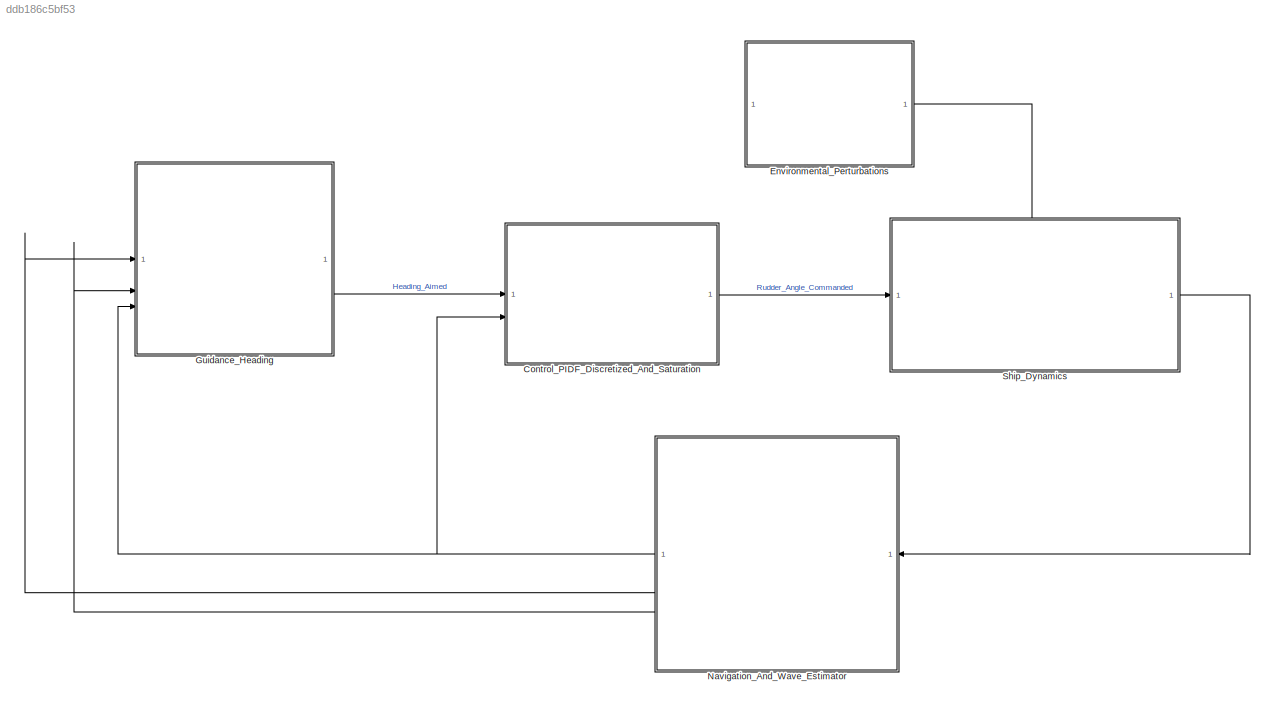
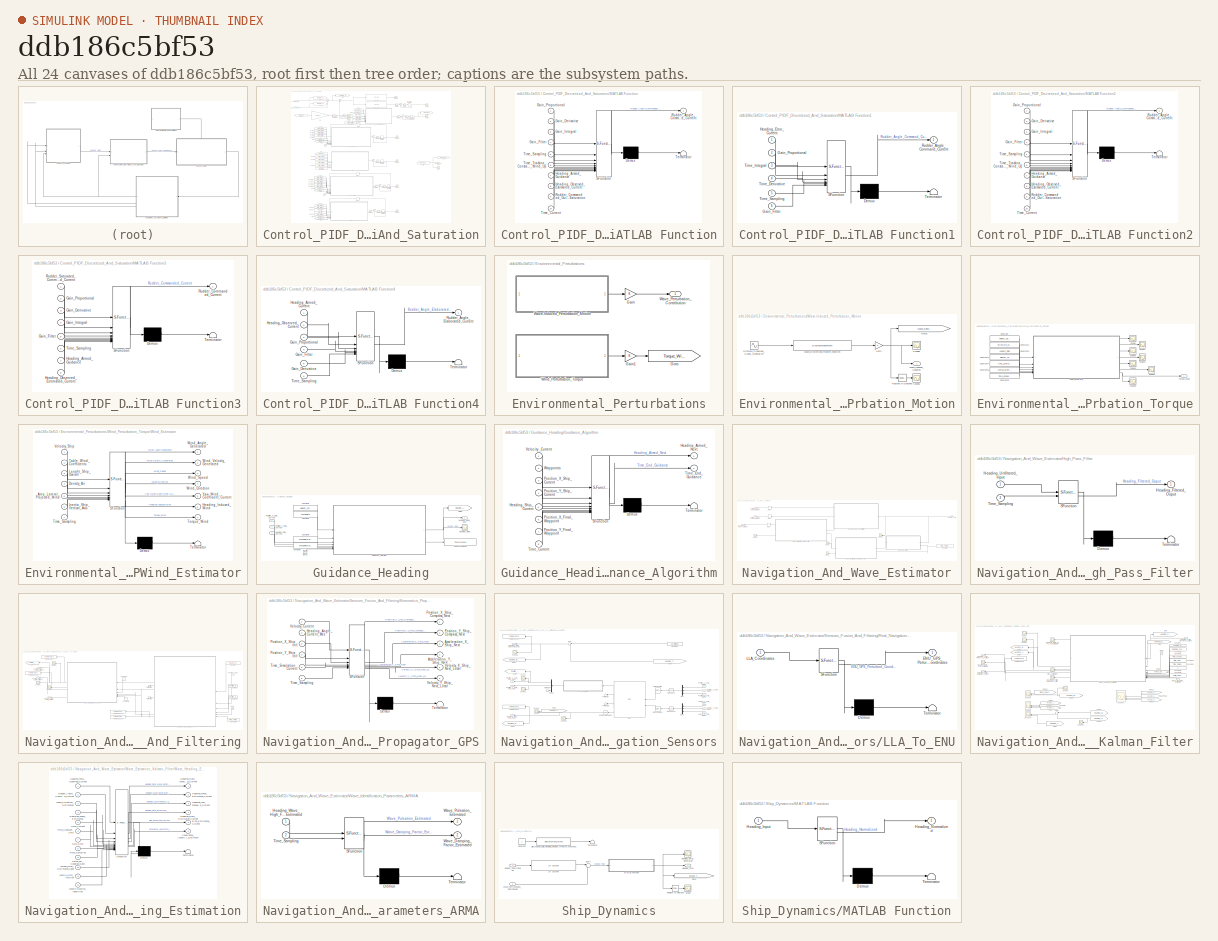
[diagram: thumbnail index - all 24 canvases of the model, root first then tree order]
MODEL slx_ddb186c5bf53
KIND model
CONFIG AbsTol = auto
CONFIG EnableMultiTasking = off
CONFIG FixedStep = auto
CONFIG MaxStep = auto
CONFIG MinStep = auto
CONFIG RelTol = 1e-3
CONFIG SampleTimeConstraint = Unconstrained
CONFIG SolverName = VariableStepAuto
CONFIG StartTime = 0.0
CONFIG StopTime = 1000
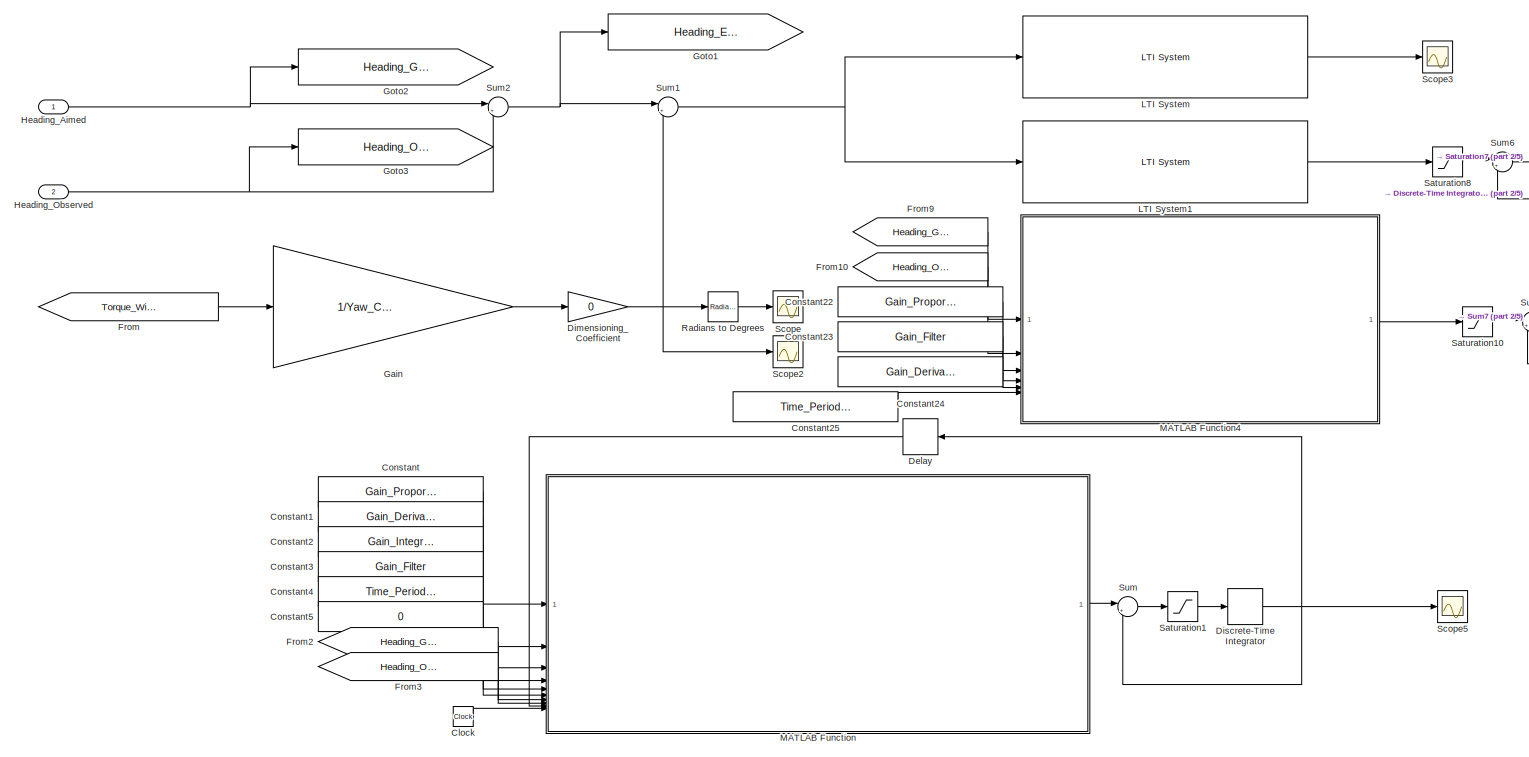
[diagram: Control_PIDF_Discretized_And_Saturation - part 1/5, top center region]
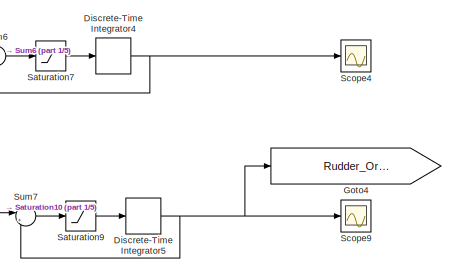
[diagram: Control_PIDF_Discretized_And_Saturation - part 2/5, top right region]
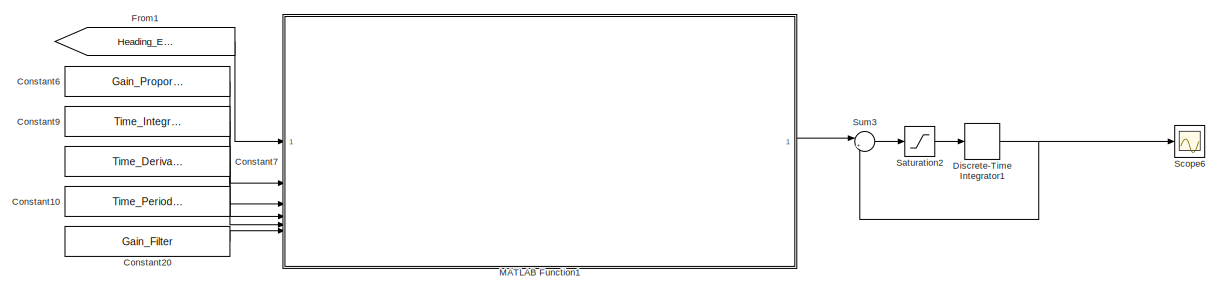
[diagram: Control_PIDF_Discretized_And_Saturation - part 3/5, central region]
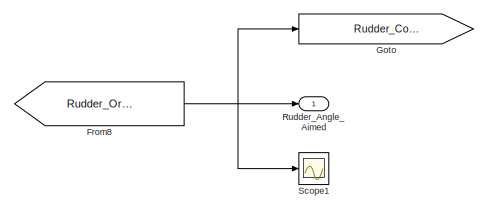
[diagram: Control_PIDF_Discretized_And_Saturation - part 4/5, middle right region]
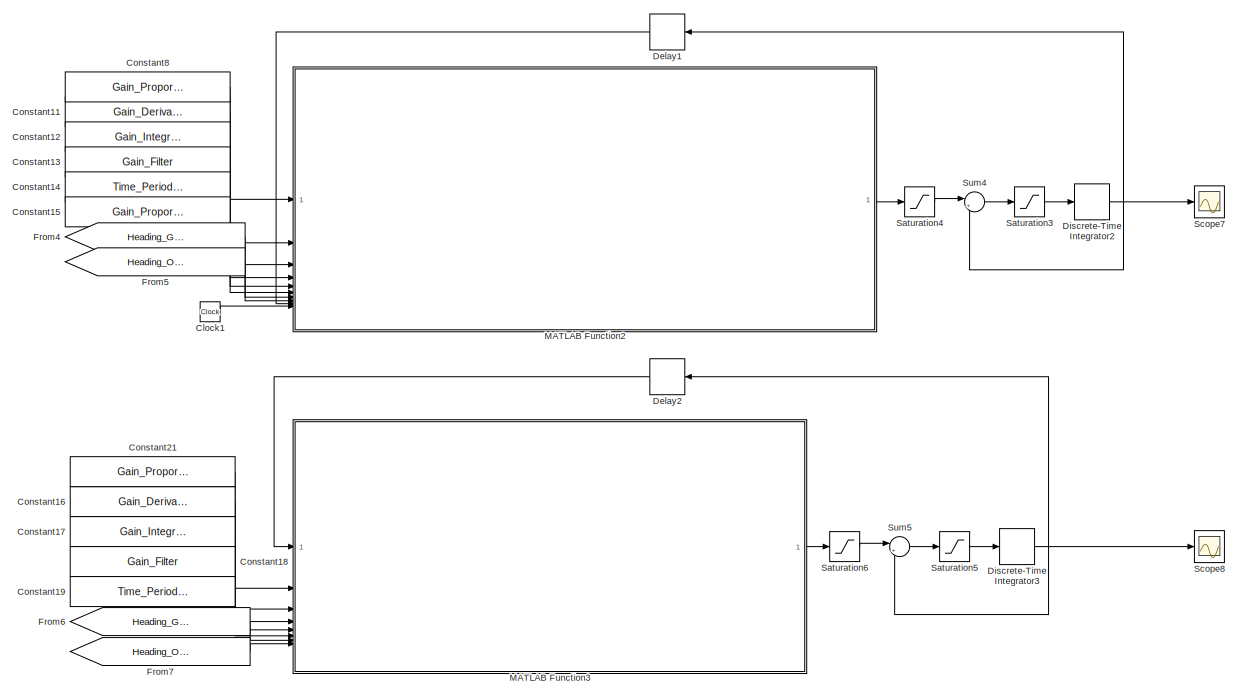
[diagram: Control_PIDF_Discretized_And_Saturation - part 5/5, bottom center region]
BLOCK [SubSystem] Control_PIDF_Discretized_And_Saturation
BLOCK [Clock] Control_PIDF_Discretized_And_Saturation/Clock
BLOCK [Clock] Control_PIDF_Discretized_And_Saturation/Clock1
BLOCK [Constant] Control_PIDF_Discretized_And_Saturation/Constant
  Value = Gain_Proportional
BLOCK [Constant] Control_PIDF_Discretized_And_Saturation/Constant1
  Value = Gain_Derivative
BLOCK [Constant] Control_PIDF_Discretized_And_Saturation/Constant10
  Value = Time_Period_Sampling
BLOCK [Constant] Control_PIDF_Discretized_And_Saturation/Constant11
  Value = Gain_Derivative
BLOCK [Constant] Control_PIDF_Discretized_And_Saturation/Constant12
  Value = Gain_Integral
BLOCK [Constant] Control_PIDF_Discretized_And_Saturation/Constant13
  Value = Gain_Filter
BLOCK [Constant] Control_PIDF_Discretized_And_Saturation/Constant14
  Value = Time_Period_Sampling
BLOCK [Constant] Control_PIDF_Discretized_And_Saturation/Constant15
  Value = Gain_Proportional/Gain_Integral/4
BLOCK [Constant] Control_PIDF_Discretized_And_Saturation/Constant16
  Value = Gain_Derivative
BLOCK [Constant] Control_PIDF_Discretized_And_Saturation/Constant17
  Value = Gain_Integral
BLOCK [Constant] Control_PIDF_Discretized_And_Saturation/Constant18
  Value = Gain_Filter
BLOCK [Constant] Control_PIDF_Discretized_And_Saturation/Constant19
  Value = Time_Period_Sampling
BLOCK [Constant] Control_PIDF_Discretized_And_Saturation/Constant2
  Value = Gain_Integral
BLOCK [Constant] Control_PIDF_Discretized_And_Saturation/Constant20
  Value = Gain_Filter
BLOCK [Constant] Control_PIDF_Discretized_And_Saturation/Constant21
  Value = Gain_Proportional
BLOCK [Constant] Control_PIDF_Discretized_And_Saturation/Constant22
  Value = Gain_Proportional
BLOCK [Constant] Control_PIDF_Discretized_And_Saturation/Constant23
  Value = Gain_Filter
BLOCK [Constant] Control_PIDF_Discretized_And_Saturation/Constant24
  Value = Gain_Derivative
BLOCK [Constant] Control_PIDF_Discretized_And_Saturation/Constant25
  Value = Time_Period_Sampling
BLOCK [Constant] Control_PIDF_Discretized_And_Saturation/Constant3
  Value = Gain_Filter
BLOCK [Constant] Control_PIDF_Discretized_And_Saturation/Constant4
  Value = Time_Period_Sampling
BLOCK [Constant] Control_PIDF_Discretized_And_Saturation/Constant5
  Value = 0
BLOCK [Constant] Control_PIDF_Discretized_And_Saturation/Constant6
  Value = Gain_Proportional
BLOCK [Constant] Control_PIDF_Discretized_And_Saturation/Constant7
  Value = Time_Derivative
BLOCK [Constant] Control_PIDF_Discretized_And_Saturation/Constant8
  Value = Gain_Proportional
BLOCK [Constant] Control_PIDF_Discretized_And_Saturation/Constant9
  Value = Time_Integral
BLOCK [Delay] Control_PIDF_Discretized_And_Saturation/Delay
  DelayLength = 1
  InputPortMap = u0
  InputProcessing = Columns as channels (frame based)
  SampleTime = Time_Period_Sampling
BLOCK [Delay] Control_PIDF_Discretized_And_Saturation/Delay1
  DelayLength = 1
  InputPortMap = u0
  InputProcessing = Columns as channels (frame based)
  SampleTime = Time_Period_Sampling
BLOCK [Delay] Control_PIDF_Discretized_And_Saturation/Delay2
  DelayLength = 1
  InputPortMap = u0
  InputProcessing = Columns as channels (frame based)
  SampleTime = Time_Period_Sampling
BLOCK [Gain] Control_PIDF_Discretized_And_Saturation/Dimensioning_Coefficient
  Gain = 0
BLOCK [DiscreteIntegrator] Control_PIDF_Discretized_And_Saturation/Discrete-Time Integrator
  ICPrevOutput = DiscIntNeverNeededParam
  ICPrevScaledInput = DiscIntNeverNeededParam
  InitialConditionSetting = Auto
  SampleTime = Time_Period_Sampling
BLOCK [DiscreteIntegrator] Control_PIDF_Discretized_And_Saturation/Discrete-Time Integrator1
  ICPrevOutput = DiscIntNeverNeededParam
  ICPrevScaledInput = DiscIntNeverNeededParam
  InitialConditionSetting = Auto
  SampleTime = Time_Period_Sampling
BLOCK [DiscreteIntegrator] Control_PIDF_Discretized_And_Saturation/Discrete-Time Integrator2
  ICPrevOutput = DiscIntNeverNeededParam
  ICPrevScaledInput = DiscIntNeverNeededParam
  InitialConditionSetting = Auto
  SampleTime = Time_Period_Sampling
BLOCK [DiscreteIntegrator] Control_PIDF_Discretized_And_Saturation/Discrete-Time Integrator3
  ICPrevOutput = DiscIntNeverNeededParam
  ICPrevScaledInput = DiscIntNeverNeededParam
  InitialConditionSetting = Auto
  SampleTime = Time_Period_Sampling
BLOCK [DiscreteIntegrator] Control_PIDF_Discretized_And_Saturation/Discrete-Time Integrator4
  ICPrevOutput = DiscIntNeverNeededParam
  ICPrevScaledInput = DiscIntNeverNeededParam
  InitialConditionSetting = Auto
  SampleTime = Time_Period_Sampling
BLOCK [DiscreteIntegrator] Control_PIDF_Discretized_And_Saturation/Discrete-Time Integrator5
  ICPrevOutput = DiscIntNeverNeededParam
  ICPrevScaledInput = DiscIntNeverNeededParam
  InitialConditionSetting = Auto
  SampleTime = Time_Period_Sampling
BLOCK [From] Control_PIDF_Discretized_And_Saturation/From
  GotoTag = Torque_Wind_Generated
  TagVisibility = global
BLOCK [From] Control_PIDF_Discretized_And_Saturation/From1
  GotoTag = Heading_Error
  TagVisibility = global
BLOCK [From] Control_PIDF_Discretized_And_Saturation/From10
  GotoTag = Heading_Observed
  TagVisibility = global
BLOCK [From] Control_PIDF_Discretized_And_Saturation/From2
  GotoTag = Heading_Guidance
  TagVisibility = global
BLOCK [From] Control_PIDF_Discretized_And_Saturation/From3
  GotoTag = Heading_Observed
  TagVisibility = global
BLOCK [From] Control_PIDF_Discretized_And_Saturation/From4
  GotoTag = Heading_Guidance
  TagVisibility = global
BLOCK [From] Control_PIDF_Discretized_And_Saturation/From5
  GotoTag = Heading_Observed
  TagVisibility = global
BLOCK [From] Control_PIDF_Discretized_And_Saturation/From6
  GotoTag = Heading_Guidance
  TagVisibility = global
BLOCK [From] Control_PIDF_Discretized_And_Saturation/From7
  GotoTag = Heading_Observed
  TagVisibility = global
BLOCK [From] Control_PIDF_Discretized_And_Saturation/From8
  GotoTag = Rudder_Order
  TagVisibility = global
BLOCK [From] Control_PIDF_Discretized_And_Saturation/From9
  GotoTag = Heading_Guidance
  TagVisibility = global
BLOCK [Gain] Control_PIDF_Discretized_And_Saturation/Gain
  Gain = 1/Yaw_Control_Hydrodynamics_Derivative
BLOCK [Goto] Control_PIDF_Discretized_And_Saturation/Goto
  GotoTag = Rudder_Commanded
  TagVisibility = global
BLOCK [Goto] Control_PIDF_Discretized_And_Saturation/Goto1
  GotoTag = Heading_Error
  TagVisibility = global
BLOCK [Goto] Control_PIDF_Discretized_And_Saturation/Goto2
  GotoTag = Heading_Guidance
  TagVisibility = global
BLOCK [Goto] Control_PIDF_Discretized_And_Saturation/Goto3
  GotoTag = Heading_Observed
  TagVisibility = global
BLOCK [Goto] Control_PIDF_Discretized_And_Saturation/Goto4
  GotoTag = Rudder_Order
  TagVisibility = global
BLOCK [Inport] Control_PIDF_Discretized_And_Saturation/Heading_Aimed
BLOCK [Inport] Control_PIDF_Discretized_And_Saturation/Heading_Observed
  Port = 2
BLOCK [Reference] Control_PIDF_Discretized_And_Saturation/LTI System  REF=cstblocks/LTI System
  SourceBlock = cstblocks/LTI System
  SourceType = LTI Block
BLOCK [Reference] Control_PIDF_Discretized_And_Saturation/LTI System1  REF=cstblocks/LTI System
  SourceBlock = cstblocks/LTI System
  SourceType = LTI Block
BLOCK [SubSystem] Control_PIDF_Discretized_And_Saturation/MATLAB Function
  ErrorFcn = Stateflow.Translate.translate
  PermitHierarchicalResolution = ExplicitOnly
  SFBlockType = MATLAB Function
  SystemSampleTime = Time_Period_Sampling
  TreatAsAtomicUnit = on
BLOCK [Demux] Control_PIDF_Discretized_And_Saturation/MATLAB Function/ Demux 
  Outputs = 1
BLOCK [S-Function] Control_PIDF_Discretized_And_Saturation/MATLAB Function/ SFunction 
  EnableBusSupport = on
  FunctionName = sf_sfun
  PortCounts = [10 2]
  SFcnIsStateOwnerBlock = off
  SFunctionDeploymentMode = off
  Tag = Stateflow S-Function 2
BLOCK [Terminator] Control_PIDF_Discretized_And_Saturation/MATLAB Function/ Terminator 
BLOCK [Inport] Control_PIDF_Discretized_And_Saturation/MATLAB Function/Gain_Derivative
  Port = 2
BLOCK [Inport] Control_PIDF_Discretized_And_Saturation/MATLAB Function/Gain_Filter
  Port = 4
BLOCK [Inport] Control_PIDF_Discretized_And_Saturation/MATLAB Function/Gain_Integral
  Port = 3
BLOCK [Inport] Control_PIDF_Discretized_And_Saturation/MATLAB Function/Gain_Proportional
BLOCK [Inport] Control_PIDF_Discretized_And_Saturation/MATLAB Function/Heading_Aimed_Guidance
  Port = 7
BLOCK [Inport] Control_PIDF_Discretized_And_Saturation/MATLAB Function/Heading_Observed_Estimated_Current
  Port = 8
BLOCK [Outport] Control_PIDF_Discretized_And_Saturation/MATLAB Function/Rudder_Angle_Commanded_Current
BLOCK [Inport] Control_PIDF_Discretized_And_Saturation/MATLAB Function/Rudder_Commanded_Output_Saturation
  Port = 9
BLOCK [Inport] Control_PIDF_Discretized_And_Saturation/MATLAB Function/Time_Current
  Port = 10
BLOCK [Inport] Control_PIDF_Discretized_And_Saturation/MATLAB Function/Time_Sampling
  Port = 5
BLOCK [Inport] Control_PIDF_Discretized_And_Saturation/MATLAB Function/Time_Tracking_Constant_Anti_Wind_Up
  Port = 6
BLOCK [SubSystem] Control_PIDF_Discretized_And_Saturation/MATLAB Function1
  ErrorFcn = Stateflow.Translate.translate
  PermitHierarchicalResolution = ExplicitOnly
  SFBlockType = MATLAB Function
  SystemSampleTime = Time_Period_Sampling
  TreatAsAtomicUnit = on
BLOCK [Demux] Control_PIDF_Discretized_And_Saturation/MATLAB Function1/ Demux 
  Outputs = 1
BLOCK [S-Function] Control_PIDF_Discretized_And_Saturation/MATLAB Function1/ SFunction 
  EnableBusSupport = on
  FunctionName = sf_sfun
  PortCounts = [6 2]
  SFcnIsStateOwnerBlock = off
  SFunctionDeploymentMode = off
  Tag = Stateflow S-Function 5
BLOCK [Terminator] Control_PIDF_Discretized_And_Saturation/MATLAB Function1/ Terminator 
BLOCK [Inport] Control_PIDF_Discretized_And_Saturation/MATLAB Function1/Gain_Filter
  Port = 6
BLOCK [Inport] Control_PIDF_Discretized_And_Saturation/MATLAB Function1/Gain_Proportional
  Port = 2
BLOCK [Inport] Control_PIDF_Discretized_And_Saturation/MATLAB Function1/Heading_Error_Current
BLOCK [Outport] Control_PIDF_Discretized_And_Saturation/MATLAB Function1/Rudder_Angle_Command_Current
BLOCK [Inport] Control_PIDF_Discretized_And_Saturation/MATLAB Function1/Time_Derivative
  Port = 4
BLOCK [Inport] Control_PIDF_Discretized_And_Saturation/MATLAB Function1/Time_Integral
  Port = 3
BLOCK [Inport] Control_PIDF_Discretized_And_Saturation/MATLAB Function1/Time_Sampling
  Port = 5
BLOCK [SubSystem] Control_PIDF_Discretized_And_Saturation/MATLAB Function2
  ErrorFcn = Stateflow.Translate.translate
  PermitHierarchicalResolution = ExplicitOnly
  SFBlockType = MATLAB Function
  SystemSampleTime = Time_Period_Sampling
  TreatAsAtomicUnit = on
BLOCK [Demux] Control_PIDF_Discretized_And_Saturation/MATLAB Function2/ Demux 
  Outputs = 1
BLOCK [S-Function] Control_PIDF_Discretized_And_Saturation/MATLAB Function2/ SFunction 
  EnableBusSupport = on
  FunctionName = sf_sfun
  PortCounts = [10 2]
  SFcnIsStateOwnerBlock = off
  SFunctionDeploymentMode = off
  Tag = Stateflow S-Function 7
BLOCK [Terminator] Control_PIDF_Discretized_And_Saturation/MATLAB Function2/ Terminator 
BLOCK [Inport] Control_PIDF_Discretized_And_Saturation/MATLAB Function2/Gain_Derivative
  Port = 2
BLOCK [Inport] Control_PIDF_Discretized_And_Saturation/MATLAB Function2/Gain_Filter
  Port = 4
BLOCK [Inport] Control_PIDF_Discretized_And_Saturation/MATLAB Function2/Gain_Integral
  Port = 3
BLOCK [Inport] Control_PIDF_Discretized_And_Saturation/MATLAB Function2/Gain_Proportional
BLOCK [Inport] Control_PIDF_Discretized_And_Saturation/MATLAB Function2/Heading_Aimed_Guidance
  Port = 7
BLOCK [Inport] Control_PIDF_Discretized_And_Saturation/MATLAB Function2/Heading_Observed_Estimated_Current
  Port = 8
BLOCK [Outport] Control_PIDF_Discretized_And_Saturation/MATLAB Function2/Rudder_Angle_Commanded_Current
BLOCK [Inport] Control_PIDF_Discretized_And_Saturation/MATLAB Function2/Rudder_Commanded_Output_Saturation
  Port = 9
BLOCK [Inport] Control_PIDF_Discretized_And_Saturation/MATLAB Function2/Time_Current
  Port = 10
BLOCK [Inport] Control_PIDF_Discretized_And_Saturation/MATLAB Function2/Time_Sampling
  Port = 5
BLOCK [Inport] Control_PIDF_Discretized_And_Saturation/MATLAB Function2/Time_Tracking_Constant_Anti_Wind_Up
  Port = 6
BLOCK [SubSystem] Control_PIDF_Discretized_And_Saturation/MATLAB Function3
  ErrorFcn = Stateflow.Translate.translate
  PermitHierarchicalResolution = ExplicitOnly
  SFBlockType = MATLAB Function
  SystemSampleTime = Time_Period_Sampling
  TreatAsAtomicUnit = on
BLOCK [Demux] Control_PIDF_Discretized_And_Saturation/MATLAB Function3/ Demux 
  Outputs = 1
BLOCK [S-Function] Control_PIDF_Discretized_And_Saturation/MATLAB Function3/ SFunction 
  EnableBusSupport = on
  FunctionName = sf_sfun
  PortCounts = [8 2]
  SFcnIsStateOwnerBlock = off
  SFunctionDeploymentMode = off
  Tag = Stateflow S-Function 12
BLOCK [Terminator] Control_PIDF_Discretized_And_Saturation/MATLAB Function3/ Terminator 
BLOCK [Inport] Control_PIDF_Discretized_And_Saturation/MATLAB Function3/Gain_Derivative
  Port = 3
BLOCK [Inport] Control_PIDF_Discretized_And_Saturation/MATLAB Function3/Gain_Filter
  Port = 5
BLOCK [Inport] Control_PIDF_Discretized_And_Saturation/MATLAB Function3/Gain_Integral
  Port = 4
BLOCK [Inport] Control_PIDF_Discretized_And_Saturation/MATLAB Function3/Gain_Proportional
  Port = 2
BLOCK [Inport] Control_PIDF_Discretized_And_Saturation/MATLAB Function3/Heading_Aimed_Guidance
  Port = 7
BLOCK [Inport] Control_PIDF_Discretized_And_Saturation/MATLAB Function3/Heading_Observed_Estimated_Current
  Port = 8
BLOCK [Outport] Control_PIDF_Discretized_And_Saturation/MATLAB Function3/Rudder_Commanded_Current
BLOCK [Inport] Control_PIDF_Discretized_And_Saturation/MATLAB Function3/Rudder_Saturated_Commanded_Current
BLOCK [Inport] Control_PIDF_Discretized_And_Saturation/MATLAB Function3/Time_Sampling
  Port = 6
BLOCK [SubSystem] Control_PIDF_Discretized_And_Saturation/MATLAB Function4
  ErrorFcn = Stateflow.Translate.translate
  PermitHierarchicalResolution = ExplicitOnly
  SFBlockType = MATLAB Function
  SystemSampleTime = Time_Period_Sampling
  TreatAsAtomicUnit = on
BLOCK [Demux] Control_PIDF_Discretized_And_Saturation/MATLAB Function4/ Demux 
  Outputs = 1
BLOCK [S-Function] Control_PIDF_Discretized_And_Saturation/MATLAB Function4/ SFunction 
  EnableBusSupport = on
  FunctionName = sf_sfun
  PortCounts = [6 2]
  SFcnIsStateOwnerBlock = off
  SFunctionDeploymentMode = off
  Tag = Stateflow S-Function 13
BLOCK [Terminator] Control_PIDF_Discretized_And_Saturation/MATLAB Function4/ Terminator 
BLOCK [Inport] Control_PIDF_Discretized_And_Saturation/MATLAB Function4/Gain_Derivative
  Port = 5
BLOCK [Inport] Control_PIDF_Discretized_And_Saturation/MATLAB Function4/Gain_Filter
  Port = 4
BLOCK [Inport] Control_PIDF_Discretized_And_Saturation/MATLAB Function4/Gain_Proportional
  Port = 3
BLOCK [Inport] Control_PIDF_Discretized_And_Saturation/MATLAB Function4/Heading_Aimed_Current
BLOCK [Inport] Control_PIDF_Discretized_And_Saturation/MATLAB Function4/Heading_Observed_Current
  Port = 2
BLOCK [Outport] Control_PIDF_Discretized_And_Saturation/MATLAB Function4/Rudder_Angle_Elaborated_Current
BLOCK [Inport] Control_PIDF_Discretized_And_Saturation/MATLAB Function4/Time_Sampling
  Port = 6
BLOCK [Reference] Control_PIDF_Discretized_And_Saturation/Radians to Degrees  REF=simulink_extras/Transformations/Radians
to Degrees
  SourceBlock = simulink_extras/Transformations/Radians\nto Degrees
  SourceType = RadiansToDegrees
BLOCK [Outport] Control_PIDF_Discretized_And_Saturation/Rudder_Angle_Aimed
BLOCK [Saturate] Control_PIDF_Discretized_And_Saturation/Saturation1
  LowerLimit = -16*(pi/180)
  UpperLimit = 16*(pi/180)
BLOCK [Saturate] Control_PIDF_Discretized_And_Saturation/Saturation10
  LowerLimit = -35*(pi/180)
  UpperLimit = 35*(pi/180)
BLOCK [Saturate] Control_PIDF_Discretized_And_Saturation/Saturation2
  LowerLimit = -16*(pi/180)
  UpperLimit = 16*(pi/180)
BLOCK [Saturate] Control_PIDF_Discretized_And_Saturation/Saturation3
  LowerLimit = -16*(pi/180)
  UpperLimit = 16*(pi/180)
BLOCK [Saturate] Control_PIDF_Discretized_And_Saturation/Saturation4
  LowerLimit = -35*(pi/180)
  UpperLimit = 35*(pi/180)
BLOCK [Saturate] Control_PIDF_Discretized_And_Saturation/Saturation5
  LowerLimit = -16*(pi/180)
  UpperLimit = 16*(pi/180)
BLOCK [Saturate] Control_PIDF_Discretized_And_Saturation/Saturation6
  LowerLimit = -35*(pi/180)
  UpperLimit = 35*(pi/180)
BLOCK [Saturate] Control_PIDF_Discretized_And_Saturation/Saturation7
  LowerLimit = -15*(pi/180)
  UpperLimit = 15*(pi/180)
BLOCK [Saturate] Control_PIDF_Discretized_And_Saturation/Saturation8
  LowerLimit = -35*(pi/180)
  UpperLimit = 35*(pi/180)
BLOCK [Saturate] Control_PIDF_Discretized_And_Saturation/Saturation9
  LowerLimit = -15*(pi/180)
  UpperLimit = 15*(pi/180)
BLOCK [Scope] Control_PIDF_Discretized_And_Saturation/Scope
  Floating = off
  NumInputPorts = 1
  ScopeSpecificationString = Simulink.scopes.TimeScopeBlockCfg('CurrentConfiguration', extmgr.ConfigurationSet(extmgr.Configuration('Core','General UI',true),extmgr.Configuration('Core','Source UI',true),extmgr.Configuration('Sources','WiredSimulink',true,'DataLoggingVariableName','ScopeData1'),extmgr.Configuration('Visuals','Time Domain',true,'SerializedDisplays',{struct('MinYLimReal','-1.00000','MaxYLimReal','1.00000','YLab...<+1491ch>
BLOCK [Scope] Control_PIDF_Discretized_And_Saturation/Scope1
  Floating = off
  NumInputPorts = 1
  ScopeSpecificationString = Simulink.scopes.TimeScopeBlockCfg('CurrentConfiguration', extmgr.ConfigurationSet(extmgr.Configuration('Core','General UI',true),extmgr.Configuration('Core','Source UI',true),extmgr.Configuration('Sources','WiredSimulink',true,'DataLoggingVariableName','ScopeData2'),extmgr.Configuration('Visuals','Time Domain',true,'SerializedDisplays',{struct('MinYLimReal','-204.99857','MaxYLimReal','147.00661','...<+1473ch>
BLOCK [Scope] Control_PIDF_Discretized_And_Saturation/Scope2
  Floating = off
  NumInputPorts = 1
  ScopeSpecificationString = Simulink.scopes.TimeScopeBlockCfg('CurrentConfiguration', extmgr.ConfigurationSet(extmgr.Configuration('Core','General UI',true),extmgr.Configuration('Core','Source UI',true),extmgr.Configuration('Sources','WiredSimulink',true,'DataLoggingVariableName','ScopeData2'),extmgr.Configuration('Visuals','Time Domain',true,'SerializedDisplays',{struct('MinYLimReal','-1.00000','MaxYLimReal','1.00000','YLab...<+1497ch>
BLOCK [Scope] Control_PIDF_Discretized_And_Saturation/Scope3
  Floating = off
  NumInputPorts = 1
  ScopeSpecificationString = Simulink.scopes.TimeScopeBlockCfg('CurrentConfiguration', extmgr.ConfigurationSet(extmgr.Configuration('Core','General UI',true),extmgr.Configuration('Core','Source UI',true),extmgr.Configuration('Sources','WiredSimulink',true,'DataLoggingVariableName','ScopeData1'),extmgr.Configuration('Visuals','Time Domain',true,'SerializedDisplays',{struct('MinYLimReal','-205.00327','MaxYLimReal','146.98624','...<+1472ch>
BLOCK [Scope] Control_PIDF_Discretized_And_Saturation/Scope4
  Floating = off
  NumInputPorts = 1
  ScopeSpecificationString = Simulink.scopes.TimeScopeBlockCfg('CurrentConfiguration', extmgr.ConfigurationSet(extmgr.Configuration('Core','General UI',true),extmgr.Configuration('Core','Source UI',true),extmgr.Configuration('Sources','WiredSimulink',true,'DataLoggingVariableName','ScopeData2'),extmgr.Configuration('Visuals','Time Domain',true,'SerializedDisplays',{struct('MinYLimReal','-0.68472','MaxYLimReal','0.74724','YLab...<+1473ch>
BLOCK [Scope] Control_PIDF_Discretized_And_Saturation/Scope5
  Floating = off
  NumInputPorts = 1
  ScopeSpecificationString = Simulink.scopes.TimeScopeBlockCfg('CurrentConfiguration', extmgr.ConfigurationSet(extmgr.Configuration('Core','General UI',true),extmgr.Configuration('Core','Source UI',true),extmgr.Configuration('Sources','WiredSimulink',true,'DataLoggingVariableName','ScopeData3'),extmgr.Configuration('Visuals','Time Domain',true),extmgr.Configuration('Tools','Plot Navigation',true),extmgr.Configuration('Tools',...<+40ch>
BLOCK [Scope] Control_PIDF_Discretized_And_Saturation/Scope6
  Floating = off
  NumInputPorts = 1
  ScopeSpecificationString = Simulink.scopes.TimeScopeBlockCfg('CurrentConfiguration', extmgr.ConfigurationSet(extmgr.Configuration('Core','General UI',true),extmgr.Configuration('Core','Source UI',true),extmgr.Configuration('Sources','WiredSimulink',true,'DataLoggingVariableName','ScopeData4'),extmgr.Configuration('Visuals','Time Domain',true,'SerializedDisplays',{struct('MinYLimReal','-0.74921','MaxYLimReal','0.71175','YLab...<+1473ch>
BLOCK [Scope] Control_PIDF_Discretized_And_Saturation/Scope7
  Floating = off
  NumInputPorts = 1
  ScopeSpecificationString = Simulink.scopes.TimeScopeBlockCfg('CurrentConfiguration', extmgr.ConfigurationSet(extmgr.Configuration('Core','General UI',true),extmgr.Configuration('Core','Source UI',true),extmgr.Configuration('Sources','WiredSimulink',true,'DataLoggingVariableName','ScopeData5'),extmgr.Configuration('Visuals','Time Domain',true,'SerializedDisplays',{struct('MinYLimReal','-0.70268','MaxYLimReal','0.72821','YLab...<+1473ch>
BLOCK [Scope] Control_PIDF_Discretized_And_Saturation/Scope8
  Floating = off
  NumInputPorts = 1
  ScopeSpecificationString = Simulink.scopes.TimeScopeBlockCfg('CurrentConfiguration', extmgr.ConfigurationSet(extmgr.Configuration('Core','General UI',true),extmgr.Configuration('Core','Source UI',true),extmgr.Configuration('Sources','WiredSimulink',true,'DataLoggingVariableName','ScopeData6'),extmgr.Configuration('Visuals','Time Domain',true,'SerializedDisplays',{struct('MinYLimReal','-0.70744','MaxYLimReal','0.7518','YLabe...<+1469ch>
BLOCK [Scope] Control_PIDF_Discretized_And_Saturation/Scope9
  Floating = off
  NumInputPorts = 1
  ScopeSpecificationString = Simulink.scopes.TimeScopeBlockCfg('CurrentConfiguration', extmgr.ConfigurationSet(extmgr.Configuration('Core','General UI',true),extmgr.Configuration('Core','Source UI',true),extmgr.Configuration('Sources','WiredSimulink',true,'DataLoggingVariableName','ScopeData1'),extmgr.Configuration('Visuals','Time Domain',true,'SerializedDisplays',{struct('MinYLimReal','-0.68472','MaxYLimReal','0.74724','YLab...<+1473ch>
BLOCK [Sum] Control_PIDF_Discretized_And_Saturation/Sum
  Inputs = |+-
BLOCK [Sum] Control_PIDF_Discretized_And_Saturation/Sum1
  Inputs = |+-
BLOCK [Sum] Control_PIDF_Discretized_And_Saturation/Sum2
  Inputs = |+-
BLOCK [Sum] Control_PIDF_Discretized_And_Saturation/Sum3
  Inputs = |+-
BLOCK [Sum] Control_PIDF_Discretized_And_Saturation/Sum4
  Inputs = |+-
BLOCK [Sum] Control_PIDF_Discretized_And_Saturation/Sum5
  Inputs = |+-
BLOCK [Sum] Control_PIDF_Discretized_And_Saturation/Sum6
  Inputs = |+-
BLOCK [Sum] Control_PIDF_Discretized_And_Saturation/Sum7
  Inputs = |+-
BLOCK [SubSystem] Environmental_Perturbations
BLOCK [Gain] Environmental_Perturbations/Gain
BLOCK [Gain] Environmental_Perturbations/Gain1
BLOCK [Goto] Environmental_Perturbations/Goto
  GotoTag = Torque_Wind_Generated
  TagVisibility = global
BLOCK [SubSystem] Environmental_Perturbations/Wave-Induced_Perturbation_Motion
BLOCK [Sin] Environmental_Perturbations/Wave-Induced_Perturbation_Motion/Discrete_Sinewave_Signal_Generation
  Amplitude = 2*(pi/180)
  Frequency = Pulsation_Wave
  SampleTime = Time_Period_Sampling
BLOCK [Gain] Environmental_Perturbations/Wave-Induced_Perturbation_Motion/Gain
BLOCK [Goto] Environmental_Perturbations/Wave-Induced_Perturbation_Motion/Goto2
  GotoTag = Wave_Generated_Signal
  TagVisibility = global
BLOCK [Reference] Environmental_Perturbations/Wave-Induced_Perturbation_Motion/Radians to Degrees  REF=simulink_extras/Transformations/Radians
to Degrees
  SourceBlock = simulink_extras/Transformations/Radians\nto Degrees
  SourceType = RadiansToDegrees
BLOCK [Scope] Environmental_Perturbations/Wave-Induced_Perturbation_Motion/Scope1
  Floating = off
  NumInputPorts = 1
  ScopeSpecificationString = Simulink.scopes.TimeScopeBlockCfg('CurrentConfiguration', extmgr.ConfigurationSet(extmgr.Configuration('Core','General UI',true),extmgr.Configuration('Core','Source UI',true),extmgr.Configuration('Sources','WiredSimulink',true,'DataLoggingVariableName','ScopeData1'),extmgr.Configuration('Visuals','Time Domain',true,'SerializedDisplays',{struct('MinYLimReal','-21.87482','MaxYLimReal','21.87482','YL...<+1526ch>
BLOCK [Scope] Environmental_Perturbations/Wave-Induced_Perturbation_Motion/Scope5
  Floating = off
  NumInputPorts = 1
  ScopeSpecificationString = Simulink.scopes.TimeScopeBlockCfg('CurrentConfiguration', extmgr.ConfigurationSet(extmgr.Configuration('Core','General UI',true),extmgr.Configuration('Core','Source UI',true),extmgr.Configuration('Sources','WiredSimulink',true,'DataLoggingVariableName','ScopeData2'),extmgr.Configuration('Visuals','Time Domain',true,'SerializedDisplays',{struct('MinYLimReal','-0.38179','MaxYLimReal','0.38179','YLab...<+1506ch>
BLOCK [DiscreteTransferFcn] Environmental_Perturbations/Wave-Induced_Perturbation_Motion/Wave_Discretized_Transfer_Function
  Denominator = [Wave_Transfer_Function_Discrete.Denominator{1}]
  InputPortMap = u0
  Numerator = [Wave_Transfer_Function_Discrete.Numerator{1}]
BLOCK [Outport] Environmental_Perturbations/Wave-Induced_Perturbation_Motion/Wave_Induced_Heading
BLOCK [Outport] Environmental_Perturbations/Wave_Perturbation_Contribution
BLOCK [SubSystem] Environmental_Perturbations/Wind_Perturbation_Torque
BLOCK [Constant] Environmental_Perturbations/Wind_Perturbation_Torque/Constant
  Value = Velocity_Ship_Mean
BLOCK [Constant] Environmental_Perturbations/Wind_Perturbation_Torque/Constant1
  Value = Structure_Wind_Coefficient
BLOCK [Constant] Environmental_Perturbations/Wind_Perturbation_Torque/Constant2
  Value = Length_Ship
BLOCK [Constant] Environmental_Perturbations/Wind_Perturbation_Torque/Constant3
  Value = Density_Air
BLOCK [Constant] Environmental_Perturbations/Wind_Perturbation_Torque/Constant4
  Value = Area_Lateral_Projected_Wind
BLOCK [Constant] Environmental_Perturbations/Wind_Perturbation_Torque/Constant5
  Value = Inertia_Moment
BLOCK [Constant] Environmental_Perturbations/Wind_Perturbation_Torque/Constant6
  Value = Time_Period_Sampling
BLOCK [Scope] Environmental_Perturbations/Wind_Perturbation_Torque/Scope
  Floating = off
  NumInputPorts = 1
  ScopeSpecificationString = Simulink.scopes.TimeScopeBlockCfg('CurrentConfiguration', extmgr.ConfigurationSet(extmgr.Configuration('Core','General UI',true),extmgr.Configuration('Core','Source UI',true),extmgr.Configuration('Sources','WiredSimulink',true,'DataLoggingVariableName','ScopeData1'),extmgr.Configuration('Visuals','Time Domain',true,'SerializedDisplays',{struct('MinYLimReal','0.46624','MaxYLimReal','1.26479','YLabe...<+1546ch>
BLOCK [Scope] Environmental_Perturbations/Wind_Perturbation_Torque/Scope1
  Floating = off
  NumInputPorts = 1
  ScopeSpecificationString = Simulink.scopes.TimeScopeBlockCfg('CurrentConfiguration', extmgr.ConfigurationSet(extmgr.Configuration('Core','General UI',true),extmgr.Configuration('Core','Source UI',true),extmgr.Configuration('Sources','WiredSimulink',true,'DataLoggingVariableName','ScopeData2'),extmgr.Configuration('Visuals','Time Domain',true,'SerializedDisplays',{struct('MinYLimReal','0.11602','MaxYLimReal','1.85545','YLabe...<+1493ch>
BLOCK [Scope] Environmental_Perturbations/Wind_Perturbation_Torque/Scope2
  Floating = off
  NumInputPorts = 1
  ScopeSpecificationString = Simulink.scopes.TimeScopeBlockCfg('CurrentConfiguration', extmgr.ConfigurationSet(extmgr.Configuration('Core','General UI',true),extmgr.Configuration('Core','Source UI',true),extmgr.Configuration('Sources','WiredSimulink',true,'DataLoggingVariableName','ScopeData3'),extmgr.Configuration('Visuals','Time Domain',true,'SerializedDisplays',{struct('MinYLimReal','0.60345','MaxYLimReal','1.85596','YLabe...<+1480ch>
BLOCK [Scope] Environmental_Perturbations/Wind_Perturbation_Torque/Scope3
  Floating = off
  NumInputPorts = 1
  ScopeSpecificationString = Simulink.scopes.TimeScopeBlockCfg('CurrentConfiguration', extmgr.ConfigurationSet(extmgr.Configuration('Core','General UI',true),extmgr.Configuration('Core','Source UI',true),extmgr.Configuration('Sources','WiredSimulink',true,'DataLoggingVariableName','ScopeData4'),extmgr.Configuration('Visuals','Time Domain',true,'SerializedDisplays',{struct('MinYLimReal','0.041','MaxYLimReal','1.52319','YLabelR...<+1476ch>
BLOCK [Scope] Environmental_Perturbations/Wind_Perturbation_Torque/Scope4
  Floating = off
  NumInputPorts = 1
  ScopeSpecificationString = Simulink.scopes.TimeScopeBlockCfg('CurrentConfiguration', extmgr.ConfigurationSet(extmgr.Configuration('Core','General UI',true),extmgr.Configuration('Core','Source UI',true),extmgr.Configuration('Sources','WiredSimulink',true,'DataLoggingVariableName','ScopeData5'),extmgr.Configuration('Visuals','Time Domain',true,'SerializedDisplays',{struct('MinYLimReal','-0.21415','MaxYLimReal','0.12731','YLab...<+1519ch>
BLOCK [Scope] Environmental_Perturbations/Wind_Perturbation_Torque/Scope5
  Floating = off
  NumInputPorts = 1
  ScopeSpecificationString = Simulink.scopes.TimeScopeBlockCfg('CurrentConfiguration', extmgr.ConfigurationSet(extmgr.Configuration('Core','General UI',true),extmgr.Configuration('Core','Source UI',true),extmgr.Configuration('Sources','WiredSimulink',true,'DataLoggingVariableName','ScopeData6'),extmgr.Configuration('Visuals','Time Domain',true,'SerializedDisplays',{struct('MinYLimReal','-25538.74251','MaxYLimReal','229864.390...<+1561ch>
BLOCK [Scope] Environmental_Perturbations/Wind_Perturbation_Torque/Scope6
  Floating = off
  NumInputPorts = 1
  ScopeSpecificationString = Simulink.scopes.TimeScopeBlockCfg('CurrentConfiguration', extmgr.ConfigurationSet(extmgr.Configuration('Core','General UI',true),extmgr.Configuration('Core','Source UI',true),extmgr.Configuration('Sources','WiredSimulink',true,'DataLoggingVariableName','ScopeData7'),extmgr.Configuration('Visuals','Time Domain',true,'SerializedDisplays',{struct('MinYLimReal','-89.63768','MaxYLimReal','829.34771','Y...<+1509ch>
BLOCK [Outport] Environmental_Perturbations/Wind_Perturbation_Torque/Torque_Wind
BLOCK [SubSystem] Environmental_Perturbations/Wind_Perturbation_Torque/Wind_Estimator
  ErrorFcn = Stateflow.Translate.translate
  PermitHierarchicalResolution = ExplicitOnly
  SFBlockType = MATLAB Function
  SystemSampleTime = Time_Period_Sampling
  TreatAsAtomicUnit = on
BLOCK [Demux] Environmental_Perturbations/Wind_Perturbation_Torque/Wind_Estimator/ Demux 
  Outputs = 1
BLOCK [S-Function] Environmental_Perturbations/Wind_Perturbation_Torque/Wind_Estimator/ SFunction 
  EnableBusSupport = on
  FunctionName = sf_sfun
  PortCounts = [7 8]
  SFcnIsStateOwnerBlock = off
  SFunctionDeploymentMode = off
  Tag = Stateflow S-Function 8
BLOCK [Terminator] Environmental_Perturbations/Wind_Perturbation_Torque/Wind_Estimator/ Terminator 
BLOCK [Inport] Environmental_Perturbations/Wind_Perturbation_Torque/Wind_Estimator/Area_Lateral_Projected_Wind
  Port = 5
BLOCK [Inport] Environmental_Perturbations/Wind_Perturbation_Torque/Wind_Estimator/Density_Air
  Port = 4
BLOCK [Outport] Environmental_Perturbations/Wind_Perturbation_Torque/Wind_Estimator/Heading_Induced_Wind
  Port = 6
BLOCK [Inport] Environmental_Perturbations/Wind_Perturbation_Torque/Wind_Estimator/Inertia_Ship_Vertical_Axis
  Port = 6
BLOCK [Inport] Environmental_Perturbations/Wind_Perturbation_Torque/Wind_Estimator/Lenght_Ship_Overall
  Port = 3
BLOCK [Inport] Environmental_Perturbations/Wind_Perturbation_Torque/Wind_Estimator/Table_Wind_Coefficients
  Port = 2
BLOCK [Inport] Environmental_Perturbations/Wind_Perturbation_Torque/Wind_Estimator/Time_Sampling
  Port = 7
BLOCK [Outport] Environmental_Perturbations/Wind_Perturbation_Torque/Wind_Estimator/Torque_Wind
  Port = 7
BLOCK [Inport] Environmental_Perturbations/Wind_Perturbation_Torque/Wind_Estimator/Velocity_Ship
BLOCK [Outport] Environmental_Perturbations/Wind_Perturbation_Torque/Wind_Estimator/Wind_Angle_Generated
BLOCK [Outport] Environmental_Perturbations/Wind_Perturbation_Torque/Wind_Estimator/Wind_Direction
  Port = 4
BLOCK [Outport] Environmental_Perturbations/Wind_Perturbation_Torque/Wind_Estimator/Wind_Speed
  Port = 3
BLOCK [Outport] Environmental_Perturbations/Wind_Perturbation_Torque/Wind_Estimator/Wind_Velocity_Generated
  Port = 2
BLOCK [Outport] Environmental_Perturbations/Wind_Perturbation_Torque/Wind_Estimator/Yaw_Wind_Coefficient_Current
  Port = 5
BLOCK [SubSystem] Guidance_Heading
BLOCK [Clock] Guidance_Heading/Clock1
BLOCK [Constant] Guidance_Heading/Constant3
  Value = Velocity_Ship_Mean
BLOCK [Constant] Guidance_Heading/Constant4
  Value = Waypoints
BLOCK [Constant] Guidance_Heading/Constant5
  Value = Waypoints(end,1)
BLOCK [Constant] Guidance_Heading/Constant6
  Value = Waypoints(end,2)
BLOCK [Goto] Guidance_Heading/Goto5
  GotoTag = Heading_Aimed
  TagVisibility = global
BLOCK [SubSystem] Guidance_Heading/Guidance_Algorithm
  ErrorFcn = Stateflow.Translate.translate
  PermitHierarchicalResolution = ExplicitOnly
  SFBlockType = MATLAB Function
  SystemSampleTime = Time_Guidance_Sampling
  TreatAsAtomicUnit = on
BLOCK [Demux] Guidance_Heading/Guidance_Algorithm/ Demux 
  Outputs = 1
BLOCK [S-Function] Guidance_Heading/Guidance_Algorithm/ SFunction 
  EnableBusSupport = on
  FunctionName = sf_sfun
  PortCounts = [8 3]
  SFcnIsStateOwnerBlock = off
  SFunctionDeploymentMode = off
  Tag = Stateflow S-Function 1
BLOCK [Terminator] Guidance_Heading/Guidance_Algorithm/ Terminator 
BLOCK [Outport] Guidance_Heading/Guidance_Algorithm/Heading_Aimed_Next
BLOCK [Inport] Guidance_Heading/Guidance_Algorithm/Heading_Ship_Current
  Port = 5
BLOCK [Inport] Guidance_Heading/Guidance_Algorithm/Position_X_Final_Waypoint
  Port = 6
BLOCK [Inport] Guidance_Heading/Guidance_Algorithm/Position_X_Ship_Current
  Port = 3
BLOCK [Inport] Guidance_Heading/Guidance_Algorithm/Position_Y_Final_Waypoint
  Port = 7
BLOCK [Inport] Guidance_Heading/Guidance_Algorithm/Position_Y_Ship_Current
  Port = 4
BLOCK [Inport] Guidance_Heading/Guidance_Algorithm/Time_Current
  Port = 8
BLOCK [Outport] Guidance_Heading/Guidance_Algorithm/Time_End_Guidance
  Port = 2
BLOCK [Inport] Guidance_Heading/Guidance_Algorithm/Velocity_Current
BLOCK [Inport] Guidance_Heading/Guidance_Algorithm/Waypoints
  Port = 2
BLOCK [Scope] Guidance_Heading/Heading_Aimed
  Floating = off
  NumInputPorts = 1
  ScopeSpecificationString = Simulink.scopes.TimeScopeBlockCfg('CurrentConfiguration', extmgr.ConfigurationSet(extmgr.Configuration('Core','General UI',true),extmgr.Configuration('Core','Source UI',true),extmgr.Configuration('Sources','WiredSimulink',true,'DataLoggingVariableName','ScopeData13'),extmgr.Configuration('Visuals','Time Domain',true,'SerializedDisplays',{struct('MinYLimReal','0.67272','MaxYLimReal','4.23098','YLab...<+1537ch>
BLOCK [Outport] Guidance_Heading/Heading_Aimed_Next
BLOCK [Inport] Guidance_Heading/Heading_Ship_Current
  Port = 3
BLOCK [Inport] Guidance_Heading/Position_X_Ship_Current
BLOCK [Inport] Guidance_Heading/Position_Y_Ship_Current
  Port = 2
BLOCK [ToWorkspace] Guidance_Heading/To Workspace2
  FixptAsFi = on
  MaxDataPoints = inf
  SampleTime = -1
  SaveFormat = Timeseries
  VariableName = Time_End_Guidance_Algorithm
BLOCK [SubSystem] Navigation_And_Wave_Estimator
BLOCK [Constant] Navigation_And_Wave_Estimator/Constant1
  Value = Time_Period_Sampling
BLOCK [Delay] Navigation_And_Wave_Estimator/Delay
  DelayLength = 1
  InputPortMap = u0
  InputProcessing = Columns as channels (frame based)
  NameLocation = top
  SampleTime = Time_Period_Sampling
BLOCK [Delay] Navigation_And_Wave_Estimator/Delay1
  DelayLength = 1
  InputPortMap = u0
  InputProcessing = Columns as channels (frame based)
  NameLocation = top
  SampleTime = Time_Period_Sampling
BLOCK [Delay] Navigation_And_Wave_Estimator/Delay2
  DelayLength = 1
  InputPortMap = u0
  InputProcessing = Columns as channels (frame based)
  NameLocation = top
  SampleTime = Time_Period_Sampling
BLOCK [Outport] Navigation_And_Wave_Estimator/Heading_Low_Frequency_Filtered_Estimated
BLOCK [Inport] Navigation_And_Wave_Estimator/Heading_Total
BLOCK [SubSystem] Navigation_And_Wave_Estimator/High_Pass_Filter
  ErrorFcn = Stateflow.Translate.translate
  PermitHierarchicalResolution = ExplicitOnly
  SFBlockType = MATLAB Function
  SystemSampleTime = Time_Period_Sampling
  TreatAsAtomicUnit = on
BLOCK [Demux] Navigation_And_Wave_Estimator/High_Pass_Filter/ Demux 
  Outputs = 1
BLOCK [S-Function] Navigation_And_Wave_Estimator/High_Pass_Filter/ SFunction 
  EnableBusSupport = on
  FunctionName = sf_sfun
  PortCounts = [2 2]
  SFcnIsStateOwnerBlock = off
  SFunctionDeploymentMode = off
  Tag = Stateflow S-Function 10
BLOCK [Terminator] Navigation_And_Wave_Estimator/High_Pass_Filter/ Terminator 
BLOCK [Outport] Navigation_And_Wave_Estimator/High_Pass_Filter/Heading_Filtered_Ouput
BLOCK [Inport] Navigation_And_Wave_Estimator/High_Pass_Filter/Heading_Unfiltered_Input
BLOCK [Inport] Navigation_And_Wave_Estimator/High_Pass_Filter/Time_Sampling
  Port = 2
BLOCK [Outport] Navigation_And_Wave_Estimator/Position_X_Ship_Current_Estimated
  Port = 2
BLOCK [Outport] Navigation_And_Wave_Estimator/Position_Y_Ship_Current_Estimated
  Port = 3
BLOCK [Scope] Navigation_And_Wave_Estimator/Scope
  Floating = off
  NumInputPorts = 1
  ScopeSpecificationString = Simulink.scopes.TimeScopeBlockCfg('CurrentConfiguration', extmgr.ConfigurationSet(extmgr.Configuration('Core','General UI',true),extmgr.Configuration('Core','Source UI',true),extmgr.Configuration('Sources','WiredSimulink',true,'DataLoggingVariableName','ScopeData2'),extmgr.Configuration('Visuals','Time Domain',true,'SerializedDisplays',{struct('MinYLimReal','-1.24769','MaxYLimReal','1.22922','YLab...<+1557ch>
BLOCK [Scope] Navigation_And_Wave_Estimator/Scope1
  Floating = off
  NumInputPorts = 1
  ScopeSpecificationString = Simulink.scopes.TimeScopeBlockCfg('CurrentConfiguration', extmgr.ConfigurationSet(extmgr.Configuration('Core','General UI',true),extmgr.Configuration('Core','Source UI',true),extmgr.Configuration('Sources','WiredSimulink',true,'DataLoggingVariableName','ScopeData1'),extmgr.Configuration('Visuals','Time Domain',true,'SerializedDisplays',{struct('MinYLimReal','0.38545','MaxYLimReal','0.75628','YLabe...<+1550ch>
BLOCK [Scope] Navigation_And_Wave_Estimator/Scope2
  Floating = off
  NumInputPorts = 1
  ScopeSpecificationString = Simulink.scopes.TimeScopeBlockCfg('CurrentConfiguration', extmgr.ConfigurationSet(extmgr.Configuration('Core','General UI',true),extmgr.Configuration('Core','Source UI',true),extmgr.Configuration('Sources','WiredSimulink',true,'DataLoggingVariableName','ScopeData1'),extmgr.Configuration('Visuals','Time Domain',true),extmgr.Configuration('Tools','Plot Navigation',true),extmgr.Configuration('Tools',...<+40ch>
BLOCK [Scope] Navigation_And_Wave_Estimator/Scope5
  Floating = off
  NumInputPorts = 2
  ScopeSpecificationString = Simulink.scopes.TimeScopeBlockCfg('CurrentConfiguration', extmgr.ConfigurationSet(extmgr.Configuration('Core','General UI',true),extmgr.Configuration('Core','Source UI',true),extmgr.Configuration('Sources','WiredSimulink',true,'DataLoggingVariableName','ScopeData1'),extmgr.Configuration('Visuals','Time Domain',true,'SerializedDisplays',{struct('MinYLimReal','-1.2727','MaxYLimReal','3.87418','YLabe...<+1497ch>
BLOCK [SubSystem] Navigation_And_Wave_Estimator/Sensors_Fusion_And_Filtering
BLOCK [Clock] Navigation_And_Wave_Estimator/Sensors_Fusion_And_Filtering/Clock
BLOCK [Constant] Navigation_And_Wave_Estimator/Sensors_Fusion_And_Filtering/Constant
  Value = Velocity_Ship_Mean
BLOCK [Constant] Navigation_And_Wave_Estimator/Sensors_Fusion_And_Filtering/Constant1
  Value = Position_Initial_X
BLOCK [Constant] Navigation_And_Wave_Estimator/Sensors_Fusion_And_Filtering/Constant2
  Value = Position_Initial_Y
BLOCK [Constant] Navigation_And_Wave_Estimator/Sensors_Fusion_And_Filtering/Constant3
  Value = Time_Period_Sampling
BLOCK [Constant] Navigation_And_Wave_Estimator/Sensors_Fusion_And_Filtering/Constant7
  Value = 0
BLOCK [Constant] Navigation_And_Wave_Estimator/Sensors_Fusion_And_Filtering/Constant8
  Value = 0
BLOCK [Goto] Navigation_And_Wave_Estimator/Sensors_Fusion_And_Filtering/Goto
  GotoTag = Position_X_Filtered
  TagVisibility = global
BLOCK [Outport] Navigation_And_Wave_Estimator/Sensors_Fusion_And_Filtering/Heading_Ship_Current_Filtered
  Port = 3
BLOCK [Inport] Navigation_And_Wave_Estimator/Sensors_Fusion_And_Filtering/Heading_Total
BLOCK [SubSystem] Navigation_And_Wave_Estimator/Sensors_Fusion_And_Filtering/Kinematics_Propagator_GPS
  ErrorFcn = Stateflow.Translate.translate
  PermitHierarchicalResolution = ExplicitOnly
  SFBlockType = MATLAB Function
  SystemSampleTime = Time_Period_Sampling
  TreatAsAtomicUnit = on
BLOCK [Demux] Navigation_And_Wave_Estimator/Sensors_Fusion_And_Filtering/Kinematics_Propagator_GPS/ Demux 
  Outputs = 1
BLOCK [S-Function] Navigation_And_Wave_Estimator/Sensors_Fusion_And_Filtering/Kinematics_Propagator_GPS/ SFunction 
  EnableBusSupport = on
  FunctionName = sf_sfun
  PortCounts = [6 7]
  SFcnIsStateOwnerBlock = off
  SFunctionDeploymentMode = off
  Tag = Stateflow S-Function 3
BLOCK [Terminator] Navigation_And_Wave_Estimator/Sensors_Fusion_And_Filtering/Kinematics_Propagator_GPS/ Terminator 
BLOCK [Outport] Navigation_And_Wave_Estimator/Sensors_Fusion_And_Filtering/Kinematics_Propagator_GPS/Acceleration_X_Ship_Next
  Port = 3
BLOCK [Outport] Navigation_And_Wave_Estimator/Sensors_Fusion_And_Filtering/Kinematics_Propagator_GPS/Acceleration_Y_Ship_Next
  Port = 4
BLOCK [Inport] Navigation_And_Wave_Estimator/Sensors_Fusion_And_Filtering/Kinematics_Propagator_GPS/Heading_Angle_Current_Mes
  Port = 2
BLOCK [Outport] Navigation_And_Wave_Estimator/Sensors_Fusion_And_Filtering/Kinematics_Propagator_GPS/Position_X_Ship_Compass_Next
BLOCK [Inport] Navigation_And_Wave_Estimator/Sensors_Fusion_And_Filtering/Kinematics_Propagator_GPS/Position_X_Ship_Init
  Port = 3
BLOCK [Outport] Navigation_And_Wave_Estimator/Sensors_Fusion_And_Filtering/Kinematics_Propagator_GPS/Position_Y_Ship_Compass_Next
  Port = 2
BLOCK [Inport] Navigation_And_Wave_Estimator/Sensors_Fusion_And_Filtering/Kinematics_Propagator_GPS/Position_Y_Ship_Init
  Port = 4
BLOCK [Inport] Navigation_And_Wave_Estimator/Sensors_Fusion_And_Filtering/Kinematics_Propagator_GPS/Time_Sampling
  Port = 6
BLOCK [Inport] Navigation_And_Wave_Estimator/Sensors_Fusion_And_Filtering/Kinematics_Propagator_GPS/Time_Simulation_Current
  Port = 5
BLOCK [Inport] Navigation_And_Wave_Estimator/Sensors_Fusion_And_Filtering/Kinematics_Propagator_GPS/Velocity_Current
BLOCK [Outport] Navigation_And_Wave_Estimator/Sensors_Fusion_And_Filtering/Kinematics_Propagator_GPS/Velocity_X_Ship_Next_Local
  Port = 5
BLOCK [Outport] Navigation_And_Wave_Estimator/Sensors_Fusion_And_Filtering/Kinematics_Propagator_GPS/Velocity_Y_Ship_Next_Local
  Port = 6
BLOCK [Outport] Navigation_And_Wave_Estimator/Sensors_Fusion_And_Filtering/Position_Ship_X_Current_Filtered
BLOCK [Outport] Navigation_And_Wave_Estimator/Sensors_Fusion_And_Filtering/Position_Ship_Y_Current_Filtered
  Port = 2
BLOCK [SubSystem] Navigation_And_Wave_Estimator/Sensors_Fusion_And_Filtering/Real_Navigation_Sensors
BLOCK [Constant] Navigation_And_Wave_Estimator/Sensors_Fusion_And_Filtering/Real_Navigation_Sensors/Constant
  Value = 2.1*(pi/180)
BLOCK [Reference] Navigation_And_Wave_Estimator/Sensors_Fusion_And_Filtering/Real_Navigation_Sensors/Degrees to Radians  REF=simulink_extras/Transformations/Degrees to
Radians
  SourceBlock = simulink_extras/Transformations/Degrees to\nRadians
  SourceType = DegreesToRadians
BLOCK [Demux] Navigation_And_Wave_Estimator/Sensors_Fusion_And_Filtering/Real_Navigation_Sensors/Demux
  Outputs = 3
BLOCK [From] Navigation_And_Wave_Estimator/Sensors_Fusion_And_Filtering/Real_Navigation_Sensors/From4
  GotoTag = Heading_Total_Wave_Control
  TagVisibility = global
BLOCK [From] Navigation_And_Wave_Estimator/Sensors_Fusion_And_Filtering/Real_Navigation_Sensors/From7
  GotoTag = Heading_Total_Wave_Control
  TagVisibility = global
BLOCK [Reference] Navigation_And_Wave_Estimator/Sensors_Fusion_And_Filtering/Real_Navigation_Sensors/GPS  REF=sensorgpslib/GPS
  SourceBlock = sensorgpslib/GPS
  SourceType = fusion.internal.simulink.gpsSensor
BLOCK [Goto] Navigation_And_Wave_Estimator/Sensors_Fusion_And_Filtering/Real_Navigation_Sensors/Goto1
  GotoTag = Heading_GPS_Noisy
  TagVisibility = global
BLOCK [Goto] Navigation_And_Wave_Estimator/Sensors_Fusion_And_Filtering/Real_Navigation_Sensors/Goto2
  GotoTag = Heading_Magnetometer_Noisy
  TagVisibility = global
BLOCK [Goto] Navigation_And_Wave_Estimator/Sensors_Fusion_And_Filtering/Real_Navigation_Sensors/Goto3
  GotoTag = Position_X_Noisy
  TagVisibility = global
BLOCK [Outport] Navigation_And_Wave_Estimator/Sensors_Fusion_And_Filtering/Real_Navigation_Sensors/Heading_Ship_GPS_Noisy
  Port = 3
BLOCK [Outport] Navigation_And_Wave_Estimator/Sensors_Fusion_And_Filtering/Real_Navigation_Sensors/Heading_Ship_Magnetometer_Noisy
  Port = 4
BLOCK [SubSystem] Navigation_And_Wave_Estimator/Sensors_Fusion_And_Filtering/Real_Navigation_Sensors/LLA_To_ENU
  ErrorFcn = Stateflow.Translate.translate
  PermitHierarchicalResolution = ExplicitOnly
  SFBlockType = MATLAB Function
  SystemSampleTime = Time_Period_Sampling
  TreatAsAtomicUnit = on
BLOCK [Demux] Navigation_And_Wave_Estimator/Sensors_Fusion_And_Filtering/Real_Navigation_Sensors/LLA_To_ENU/ Demux 
  Outputs = 1
BLOCK [S-Function] Navigation_And_Wave_Estimator/Sensors_Fusion_And_Filtering/Real_Navigation_Sensors/LLA_To_ENU/ SFunction 
  EnableBusSupport = on
  FunctionName = sf_sfun
  PortCounts = [1 2]
  SFcnIsStateOwnerBlock = off
  SFunctionDeploymentMode = off
  Tag = Stateflow S-Function 6
BLOCK [Terminator] Navigation_And_Wave_Estimator/Sensors_Fusion_And_Filtering/Real_Navigation_Sensors/LLA_To_ENU/ Terminator 
BLOCK [Outport] Navigation_And_Wave_Estimator/Sensors_Fusion_And_Filtering/Real_Navigation_Sensors/LLA_To_ENU/ENU_GPS_Perturbed_Coordinates
BLOCK [Inport] Navigation_And_Wave_Estimator/Sensors_Fusion_And_Filtering/Real_Navigation_Sensors/LLA_To_ENU/LLA_Coordinates
BLOCK [Mux] Navigation_And_Wave_Estimator/Sensors_Fusion_And_Filtering/Real_Navigation_Sensors/Mux
  DisplayOption = bar
  Inputs = 3
BLOCK [Mux] Navigation_And_Wave_Estimator/Sensors_Fusion_And_Filtering/Real_Navigation_Sensors/Mux1
  DisplayOption = bar
  Inputs = 3
BLOCK [Inport] Navigation_And_Wave_Estimator/Sensors_Fusion_And_Filtering/Real_Navigation_Sensors/Position_X_Ship_Current
BLOCK [Outport] Navigation_And_Wave_Estimator/Sensors_Fusion_And_Filtering/Real_Navigation_Sensors/Position_X_Ship_GPS_Noisy
BLOCK [Inport] Navigation_And_Wave_Estimator/Sensors_Fusion_And_Filtering/Real_Navigation_Sensors/Position_Y_Ship_Current
  Port = 2
BLOCK [Outport] Navigation_And_Wave_Estimator/Sensors_Fusion_And_Filtering/Real_Navigation_Sensors/Position_Y_Ship_GPS_Noisy
  Port = 2
BLOCK [Inport] Navigation_And_Wave_Estimator/Sensors_Fusion_And_Filtering/Real_Navigation_Sensors/Position_Z_Ship_Current
  Port = 3
BLOCK [RateTransition] Navigation_And_Wave_Estimator/Sensors_Fusion_And_Filtering/Real_Navigation_Sensors/Rate Transition
  OutPortSampleTime = Time_Period_Sampling
BLOCK [RateTransition] Navigation_And_Wave_Estimator/Sensors_Fusion_And_Filtering/Real_Navigation_Sensors/Rate Transition1
  OutPortSampleTime = Time_Period_Sampling
BLOCK [Scope] Navigation_And_Wave_Estimator/Sensors_Fusion_And_Filtering/Real_Navigation_Sensors/Scope
  Floating = off
  NumInputPorts = 1
  ScopeSpecificationString = Simulink.scopes.TimeScopeBlockCfg('CurrentConfiguration', extmgr.ConfigurationSet(extmgr.Configuration('Core','General UI',true),extmgr.Configuration('Core','Source UI',true),extmgr.Configuration('Sources','WiredSimulink',true,'DataLoggingVariableName','ScopeData1'),extmgr.Configuration('Visuals','Time Domain',true,'SerializedDisplays',{struct('MinYLimReal','242.57856','MaxYLimReal','285.46227','Y...<+1513ch>
BLOCK [Scope] Navigation_And_Wave_Estimator/Sensors_Fusion_And_Filtering/Real_Navigation_Sensors/Scope1
  Floating = off
  NumInputPorts = 1
  ScopeSpecificationString = Simulink.scopes.TimeScopeBlockCfg('CurrentConfiguration', extmgr.ConfigurationSet(extmgr.Configuration('Core','General UI',true),extmgr.Configuration('Core','Source UI',true),extmgr.Configuration('Sources','WiredSimulink',true,'DataLoggingVariableName','ScopeData2'),extmgr.Configuration('Visuals','Time Domain',true,'SerializedDisplays',{struct('MinYLimReal','292.87717','MaxYLimReal','336.51284','Y...<+1513ch>
BLOCK [Scope] Navigation_And_Wave_Estimator/Sensors_Fusion_And_Filtering/Real_Navigation_Sensors/Scope2
  Floating = off
  NumInputPorts = 2
  ScopeSpecificationString = Simulink.scopes.TimeScopeBlockCfg('CurrentConfiguration', extmgr.ConfigurationSet(extmgr.Configuration('Core','General UI',true),extmgr.Configuration('Core','Source UI',true),extmgr.Configuration('Sources','WiredSimulink',true,'DataLoggingVariableName','ScopeData8'),extmgr.Configuration('Visuals','Time Domain',true,'SerializedDisplays',{struct('MinYLimReal','-171429567.423','MaxYLimReal','19047736...<+1607ch>
BLOCK [Scope] Navigation_And_Wave_Estimator/Sensors_Fusion_And_Filtering/Real_Navigation_Sensors/Scope3
  Floating = off
  NumInputPorts = 1
  ScopeSpecificationString = Simulink.scopes.TimeScopeBlockCfg('CurrentConfiguration', extmgr.ConfigurationSet(extmgr.Configuration('Core','General UI',true),extmgr.Configuration('Core','Source UI',true),extmgr.Configuration('Sources','WiredSimulink',true,'DataLoggingVariableName','ScopeData4'),extmgr.Configuration('Visuals','Time Domain',true,'SerializedDisplays',{struct('MinYLimReal','-0.78457','MaxYLimReal','7.06833','YLab...<+1466ch>
BLOCK [Scope] Navigation_And_Wave_Estimator/Sensors_Fusion_And_Filtering/Real_Navigation_Sensors/Scope8
  Floating = off
  NumInputPorts = 1
  ScopeSpecificationString = Simulink.scopes.TimeScopeBlockCfg('CurrentConfiguration', extmgr.ConfigurationSet(extmgr.Configuration('Core','General UI',true),extmgr.Configuration('Core','Source UI',true),extmgr.Configuration('Sources','WiredSimulink',true,'DataLoggingVariableName','ScopeData11'),extmgr.Configuration('Visuals','Time Domain',true,'SerializedDisplays',{struct('MinYLimReal','-2638871477562220042071400383661128181...<+1812ch>
BLOCK [Sum] Navigation_And_Wave_Estimator/Sensors_Fusion_And_Filtering/Real_Navigation_Sensors/Sum
  Inputs = |++
BLOCK [Terminator] Navigation_And_Wave_Estimator/Sensors_Fusion_And_Filtering/Real_Navigation_Sensors/Terminator
BLOCK [Terminator] Navigation_And_Wave_Estimator/Sensors_Fusion_And_Filtering/Real_Navigation_Sensors/Terminator1
BLOCK [Terminator] Navigation_And_Wave_Estimator/Sensors_Fusion_And_Filtering/Real_Navigation_Sensors/Terminator4
BLOCK [ToWorkspace] Navigation_And_Wave_Estimator/Sensors_Fusion_And_Filtering/Real_Navigation_Sensors/To Workspace
  FixptAsFi = on
  MaxDataPoints = inf
  SampleTime = Time_Period_Sampling
  SaveFormat = Timeseries
  VariableName = Heading_Noisy_GPS
BLOCK [ToWorkspace] Navigation_And_Wave_Estimator/Sensors_Fusion_And_Filtering/Real_Navigation_Sensors/To Workspace1
  FixptAsFi = on
  MaxDataPoints = inf
  SampleTime = Time_Period_Sampling
  SaveFormat = Timeseries
  VariableName = Heading_Noisy_Magnetometer
BLOCK [Math] Navigation_And_Wave_Estimator/Sensors_Fusion_And_Filtering/Real_Navigation_Sensors/Transpose
  Operator = transpose
BLOCK [Math] Navigation_And_Wave_Estimator/Sensors_Fusion_And_Filtering/Real_Navigation_Sensors/Transpose1
  Operator = transpose
BLOCK [Inport] Navigation_And_Wave_Estimator/Sensors_Fusion_And_Filtering/Real_Navigation_Sensors/Velocity_X_Ship_Current
  Port = 4
BLOCK [Inport] Navigation_And_Wave_Estimator/Sensors_Fusion_And_Filtering/Real_Navigation_Sensors/Velocity_Y_Ship_Current
  Port = 5
BLOCK [Inport] Navigation_And_Wave_Estimator/Sensors_Fusion_And_Filtering/Real_Navigation_Sensors/Velocity_Z_Ship_Current
  Port = 6
BLOCK [Scope] Navigation_And_Wave_Estimator/Sensors_Fusion_And_Filtering/Scope1
  Floating = off
  NumInputPorts = 1
  ScopeSpecificationString = Simulink.scopes.TimeScopeBlockCfg('CurrentConfiguration', extmgr.ConfigurationSet(extmgr.Configuration('Core','General UI',true),extmgr.Configuration('Core','Source UI',true),extmgr.Configuration('Sources','WiredSimulink',true,'DataLoggingVariableName','ScopeData8'),extmgr.Configuration('Visuals','Time Domain',true,'SerializedDisplays',{struct('MinYLimReal','245.33204','MaxYLimReal','275.7388','YL...<+1531ch>
BLOCK [Scope] Navigation_And_Wave_Estimator/Sensors_Fusion_And_Filtering/Scope2
  Floating = off
  NumInputPorts = 1
  ScopeSpecificationString = Simulink.scopes.TimeScopeBlockCfg('CurrentConfiguration', extmgr.ConfigurationSet(extmgr.Configuration('Core','General UI',true),extmgr.Configuration('Core','Source UI',true),extmgr.Configuration('Sources','WiredSimulink',true,'DataLoggingVariableName','ScopeData9'),extmgr.Configuration('Visuals','Time Domain',true,'SerializedDisplays',{struct('MinYLimReal','-10110037511719203093497078733760521830...<+1848ch>
BLOCK [Scope] Navigation_And_Wave_Estimator/Sensors_Fusion_And_Filtering/Scope4
  Floating = off
  NumInputPorts = 1
  ScopeSpecificationString = Simulink.scopes.TimeScopeBlockCfg('CurrentConfiguration', extmgr.ConfigurationSet(extmgr.Configuration('Core','General UI',true),extmgr.Configuration('Core','Source UI',true),extmgr.Configuration('Sources','WiredSimulink',true,'DataLoggingVariableName','ScopeData1'),extmgr.Configuration('Visuals','Time Domain',true),extmgr.Configuration('Tools','Plot Navigation',true),extmgr.Configuration('Tools',...<+40ch>
BLOCK [Terminator] Navigation_And_Wave_Estimator/Sensors_Fusion_And_Filtering/Terminator1
BLOCK [Terminator] Navigation_And_Wave_Estimator/Sensors_Fusion_And_Filtering/Terminator3
BLOCK [ToWorkspace] Navigation_And_Wave_Estimator/Sensors_Fusion_And_Filtering/To Workspace
  FixptAsFi = on
  MaxDataPoints = inf
  SampleTime = Time_Period_Sampling
  SaveFormat = Timeseries
  VariableName = Position_Along_X_Axis
BLOCK [ToWorkspace] Navigation_And_Wave_Estimator/Sensors_Fusion_And_Filtering/To Workspace1
  FixptAsFi = on
  MaxDataPoints = inf
  SampleTime = Time_Period_Sampling
  SaveFormat = Timeseries
  VariableName = Position_Along_Y_Axis
BLOCK [ToWorkspace] Navigation_And_Wave_Estimator/Sensors_Fusion_And_Filtering/To Workspace2
  FixptAsFi = on
  MaxDataPoints = inf
  SampleTime = Time_Period_Sampling
  SaveFormat = Timeseries
  VariableName = Velocity_Along_X_Axis_Local
BLOCK [ToWorkspace] Navigation_And_Wave_Estimator/Sensors_Fusion_And_Filtering/To Workspace3
  FixptAsFi = on
  MaxDataPoints = inf
  SampleTime = Time_Period_Sampling
  SaveFormat = Timeseries
  VariableName = Velocity_Along_Y_Axis_Local
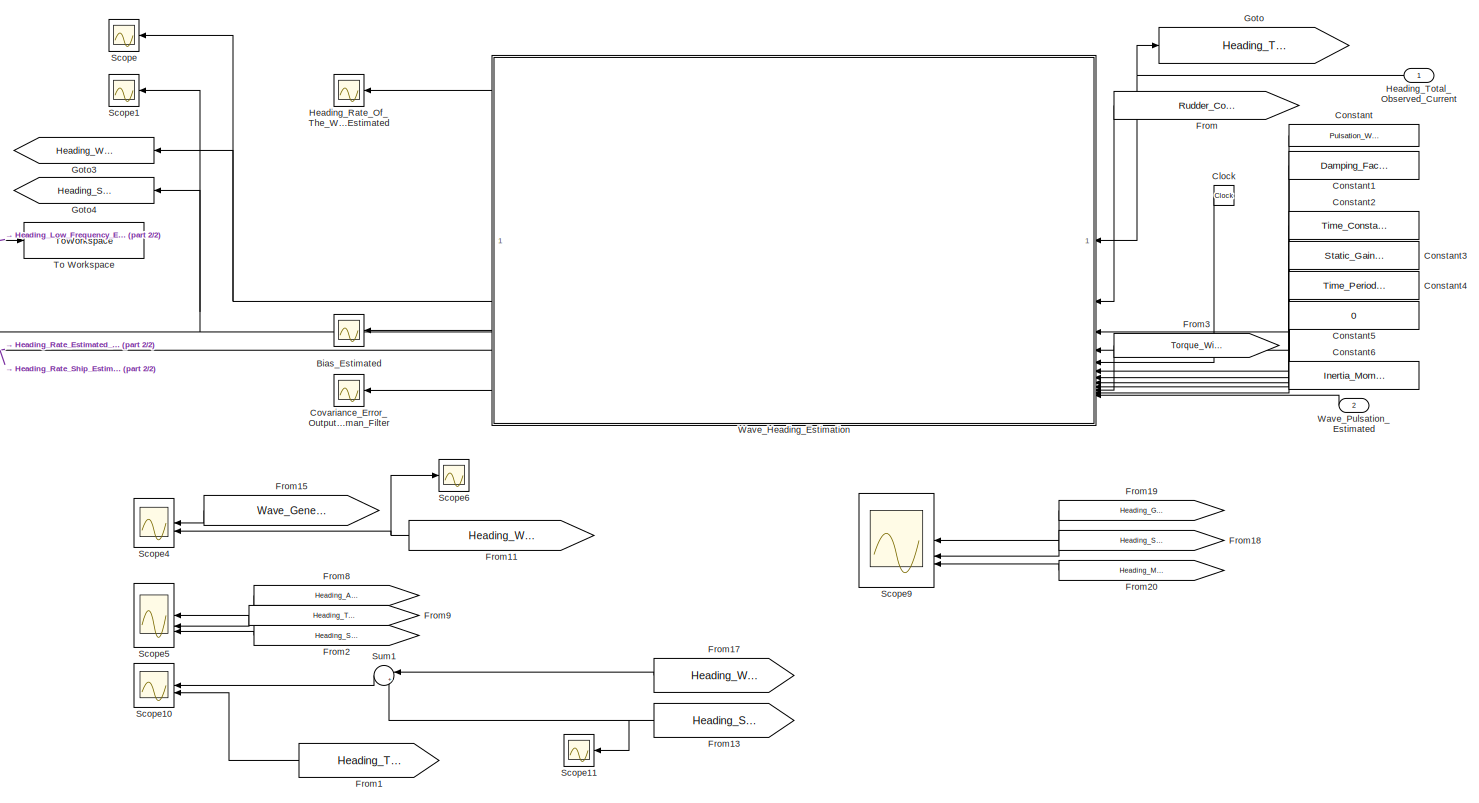
[diagram: Navigation_And_Wave_Estimator/Wave_Estimation_Kalman_Filter - part 1/2, most of the canvas]
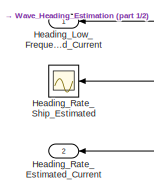
[diagram: Navigation_And_Wave_Estimator/Wave_Estimation_Kalman_Filter - part 2/2, middle left region]
BLOCK [SubSystem] Navigation_And_Wave_Estimator/Wave_Estimation_Kalman_Filter
BLOCK [Scope] Navigation_And_Wave_Estimator/Wave_Estimation_Kalman_Filter/Bias_Estimated
  Floating = off
  NumInputPorts = 1
  ScopeSpecificationString = Simulink.scopes.TimeScopeBlockCfg('CurrentConfiguration', extmgr.ConfigurationSet(extmgr.Configuration('Core','General UI',true),extmgr.Configuration('Core','Source UI',true),extmgr.Configuration('Sources','WiredSimulink',true,'DataLoggingVariableName','ScopeData9'),extmgr.Configuration('Visuals','Time Domain',true,'SerializedDisplays',{struct('MinYLimReal','-29.84119','MaxYLimReal','40.37766','YL...<+1525ch>
BLOCK [Clock] Navigation_And_Wave_Estimator/Wave_Estimation_Kalman_Filter/Clock
BLOCK [Constant] Navigation_And_Wave_Estimator/Wave_Estimation_Kalman_Filter/Constant
  SampleTime = Time_Period_Sampling
  Value = Pulsation_Wave
BLOCK [Constant] Navigation_And_Wave_Estimator/Wave_Estimation_Kalman_Filter/Constant1
  SampleTime = Time_Period_Sampling
  Value = Damping_Factor_Waves
BLOCK [Constant] Navigation_And_Wave_Estimator/Wave_Estimation_Kalman_Filter/Constant2
  SampleTime = Time_Period_Sampling
  Value = Time_Constant_Total
BLOCK [Constant] Navigation_And_Wave_Estimator/Wave_Estimation_Kalman_Filter/Constant3
  SampleTime = Time_Period_Sampling
  Value = Static_Gain_Nomoto
BLOCK [Constant] Navigation_And_Wave_Estimator/Wave_Estimation_Kalman_Filter/Constant4
  SampleTime = Time_Period_Sampling
  Value = Time_Period_Sampling
BLOCK [Constant] Navigation_And_Wave_Estimator/Wave_Estimation_Kalman_Filter/Constant5
  Value = 0
BLOCK [Constant] Navigation_And_Wave_Estimator/Wave_Estimation_Kalman_Filter/Constant6
  Value = Inertia_Moment
BLOCK [Scope] Navigation_And_Wave_Estimator/Wave_Estimation_Kalman_Filter/Covariance_Error_Output_Kalman_Filter
  Floating = off
  NumInputPorts = 1
  ScopeSpecificationString = Simulink.scopes.TimeScopeBlockCfg('CurrentConfiguration', extmgr.ConfigurationSet(extmgr.Configuration('Core','General UI',true),extmgr.Configuration('Core','Source UI',true),extmgr.Configuration('Sources','WiredSimulink',true,'DataLoggingVariableName','ScopeData10'),extmgr.Configuration('Visuals','Time Domain',true,'SerializedDisplays',{struct('MinYLimReal','-1.0429','MaxYLimReal','9.27377','YLab...<+2961ch>
BLOCK [From] Navigation_And_Wave_Estimator/Wave_Estimation_Kalman_Filter/From
  GotoTag = Rudder_Commanded
  TagVisibility = global
BLOCK [From] Navigation_And_Wave_Estimator/Wave_Estimation_Kalman_Filter/From1
  GotoTag = Heading_Total_Observed
  TagVisibility = global
BLOCK [From] Navigation_And_Wave_Estimator/Wave_Estimation_Kalman_Filter/From11
  GotoTag = Heading_Wave_Estimated
  TagVisibility = global
BLOCK [From] Navigation_And_Wave_Estimator/Wave_Estimation_Kalman_Filter/From13
  GotoTag = Heading_Ship_Estimated
  TagVisibility = global
BLOCK [From] Navigation_And_Wave_Estimator/Wave_Estimation_Kalman_Filter/From15
  GotoTag = Wave_Generated_Signal
  TagVisibility = global
BLOCK [From] Navigation_And_Wave_Estimator/Wave_Estimation_Kalman_Filter/From17
  GotoTag = Heading_Wave_Estimated
  TagVisibility = global
BLOCK [From] Navigation_And_Wave_Estimator/Wave_Estimation_Kalman_Filter/From18
  GotoTag = Heading_Ship_Estimated
  TagVisibility = global
BLOCK [From] Navigation_And_Wave_Estimator/Wave_Estimation_Kalman_Filter/From19
  GotoTag = Heading_GPS_Noisy
  TagVisibility = global
BLOCK [From] Navigation_And_Wave_Estimator/Wave_Estimation_Kalman_Filter/From2
  GotoTag = Heading_Ship_Estimated
  TagVisibility = global
BLOCK [From] Navigation_And_Wave_Estimator/Wave_Estimation_Kalman_Filter/From20
  GotoTag = Heading_Magnetometer_Noisy
  TagVisibility = global
BLOCK [From] Navigation_And_Wave_Estimator/Wave_Estimation_Kalman_Filter/From3
  GotoTag = Torque_Wind_Generated
  TagVisibility = global
BLOCK [From] Navigation_And_Wave_Estimator/Wave_Estimation_Kalman_Filter/From8
  GotoTag = Heading_Aimed
  TagVisibility = global
BLOCK [From] Navigation_And_Wave_Estimator/Wave_Estimation_Kalman_Filter/From9
  GotoTag = Heading_Total_Wave_Control
  TagVisibility = global
BLOCK [Goto] Navigation_And_Wave_Estimator/Wave_Estimation_Kalman_Filter/Goto
  GotoTag = Heading_Total_Observed
  TagVisibility = global
BLOCK [Goto] Navigation_And_Wave_Estimator/Wave_Estimation_Kalman_Filter/Goto3
  GotoTag = Heading_Wave_Estimated
  TagVisibility = global
BLOCK [Goto] Navigation_And_Wave_Estimator/Wave_Estimation_Kalman_Filter/Goto4
  GotoTag = Heading_Ship_Estimated
  NameLocation = right
  TagVisibility = global
BLOCK [Outport] Navigation_And_Wave_Estimator/Wave_Estimation_Kalman_Filter/Heading_Low_Frequency_Estimated_Current
BLOCK [Outport] Navigation_And_Wave_Estimator/Wave_Estimation_Kalman_Filter/Heading_Rate_Estimated_Current
  Port = 2
BLOCK [Scope] Navigation_And_Wave_Estimator/Wave_Estimation_Kalman_Filter/Heading_Rate_Of_The_Waves_Estimated
  Floating = off
  NumInputPorts = 1
  ScopeSpecificationString = Simulink.scopes.TimeScopeBlockCfg('CurrentConfiguration', extmgr.ConfigurationSet(extmgr.Configuration('Core','General UI',true),extmgr.Configuration('Core','Source UI',true),extmgr.Configuration('Sources','WiredSimulink',true,'DataLoggingVariableName','ScopeData5'),extmgr.Configuration('Visuals','Time Domain',true,'SerializedDisplays',{struct('MinYLimReal','-0.10459','MaxYLimReal','0.12324','YLab...<+1507ch>
BLOCK [Scope] Navigation_And_Wave_Estimator/Wave_Estimation_Kalman_Filter/Heading_Rate_Ship_Estimated
  Floating = off
  NumInputPorts = 1
  ScopeSpecificationString = Simulink.scopes.TimeScopeBlockCfg('CurrentConfiguration', extmgr.ConfigurationSet(extmgr.Configuration('Core','General UI',true),extmgr.Configuration('Core','Source UI',true),extmgr.Configuration('Sources','WiredSimulink',true,'DataLoggingVariableName','ScopeData8'),extmgr.Configuration('Visuals','Time Domain',true,'SerializedDisplays',{struct('MinYLimReal','-20.1646','MaxYLimReal','28.37911','YLa...<+1477ch>
BLOCK [Inport] Navigation_And_Wave_Estimator/Wave_Estimation_Kalman_Filter/Heading_Total_Observed_Current
BLOCK [Scope] Navigation_And_Wave_Estimator/Wave_Estimation_Kalman_Filter/Scope
  Floating = off
  NumInputPorts = 1
  ScopeSpecificationString = Simulink.scopes.TimeScopeBlockCfg('CurrentConfiguration', extmgr.ConfigurationSet(extmgr.Configuration('Core','General UI',true),extmgr.Configuration('Core','Source UI',true),extmgr.Configuration('Sources','WiredSimulink',true,'DataLoggingVariableName','ScopeData6'),extmgr.Configuration('Visuals','Time Domain',true,'SerializedDisplays',{struct('MinYLimReal','-0.06393','MaxYLimReal','0.06405','YLab...<+1527ch>
BLOCK [Scope] Navigation_And_Wave_Estimator/Wave_Estimation_Kalman_Filter/Scope1
  Floating = off
  NumInputPorts = 1
  ScopeSpecificationString = Simulink.scopes.TimeScopeBlockCfg('CurrentConfiguration', extmgr.ConfigurationSet(extmgr.Configuration('Core','General UI',true),extmgr.Configuration('Core','Source UI',true),extmgr.Configuration('Sources','WiredSimulink',true,'DataLoggingVariableName','ScopeData7'),extmgr.Configuration('Visuals','Time Domain',true,'SerializedDisplays',{struct('MinYLimReal','-1.37022','MaxYLimReal','12.33202','YLa...<+1559ch>
BLOCK [Scope] Navigation_And_Wave_Estimator/Wave_Estimation_Kalman_Filter/Scope10
  Floating = off
  NumInputPorts = 2
  ScopeSpecificationString = Simulink.scopes.TimeScopeBlockCfg('CurrentConfiguration', extmgr.ConfigurationSet(extmgr.Configuration('Core','General UI',true),extmgr.Configuration('Core','Source UI',true),extmgr.Configuration('Sources','WiredSimulink',true,'DataLoggingVariableName','ScopeData2'),extmgr.Configuration('Visuals','Time Domain',true,'SerializedDisplays',{struct('MinYLimReal','-0.93116','MaxYLimReal','7.5889','YLabe...<+1556ch>
BLOCK [Scope] Navigation_And_Wave_Estimator/Wave_Estimation_Kalman_Filter/Scope11
  Floating = off
  NumInputPorts = 1
  ScopeSpecificationString = Simulink.scopes.TimeScopeBlockCfg('CurrentConfiguration', extmgr.ConfigurationSet(extmgr.Configuration('Core','General UI',true),extmgr.Configuration('Core','Source UI',true),extmgr.Configuration('Sources','WiredSimulink',true,'DataLoggingVariableName','ScopeData3'),extmgr.Configuration('Visuals','Time Domain',true,'SerializedDisplays',{struct('MinYLimReal','-49.37944','MaxYLimReal','184.11119','Y...<+1524ch>
BLOCK [Scope] Navigation_And_Wave_Estimator/Wave_Estimation_Kalman_Filter/Scope4
  Floating = off
  NumInputPorts = 2
  ScopeSpecificationString = Simulink.scopes.TimeScopeBlockCfg('CurrentConfiguration', extmgr.ConfigurationSet(extmgr.Configuration('Core','General UI',true),extmgr.Configuration('Core','Source UI',true),extmgr.Configuration('Sources','WiredSimulink',true,'DataLoggingVariableName','ScopeData4'),extmgr.Configuration('Visuals','Time Domain',true,'SerializedDisplays',{struct('MinYLimReal','-0.15272','MaxYLimReal','0.15272','YLab...<+1535ch>
BLOCK [Scope] Navigation_And_Wave_Estimator/Wave_Estimation_Kalman_Filter/Scope5
  Floating = off
  NumInputPorts = 3
  ScopeSpecificationString = Simulink.scopes.TimeScopeBlockCfg('CurrentConfiguration', extmgr.ConfigurationSet(extmgr.Configuration('Core','General UI',true),extmgr.Configuration('Core','Source UI',true),extmgr.Configuration('Sources','WiredSimulink',true,'DataLoggingVariableName','ScopeData5'),extmgr.Configuration('Visuals','Time Domain',true,'SerializedDisplays',{struct('MinYLimReal','-0.32496','MaxYLimReal','2.92464','YLab...<+1582ch>
BLOCK [Scope] Navigation_And_Wave_Estimator/Wave_Estimation_Kalman_Filter/Scope6
  Floating = off
  NumInputPorts = 1
  ScopeSpecificationString = Simulink.scopes.TimeScopeBlockCfg('CurrentConfiguration', extmgr.ConfigurationSet(extmgr.Configuration('Core','General UI',true),extmgr.Configuration('Core','Source UI',true),extmgr.Configuration('Sources','WiredSimulink',true,'DataLoggingVariableName','ScopeData6'),extmgr.Configuration('Visuals','Time Domain',true,'SerializedDisplays',{struct('MinYLimReal','-0.30515','MaxYLimReal','0.34115','YLab...<+1463ch>
BLOCK [Scope] Navigation_And_Wave_Estimator/Wave_Estimation_Kalman_Filter/Scope9
  Floating = off
  NumInputPorts = 3
  ScopeSpecificationString = Simulink.scopes.TimeScopeBlockCfg('CurrentConfiguration', extmgr.ConfigurationSet(extmgr.Configuration('Core','General UI',true),extmgr.Configuration('Core','Source UI',true),extmgr.Configuration('Sources','WiredSimulink',true,'DataLoggingVariableName','ScopeData7'),extmgr.Configuration('Visuals','Time Domain',true,'SerializedDisplays',{struct('MinYLimReal','-1.95166','MaxYLimReal','6.49092','YLab...<+1560ch>
BLOCK [Sum] Navigation_And_Wave_Estimator/Wave_Estimation_Kalman_Filter/Sum1
  Inputs = |++
BLOCK [ToWorkspace] Navigation_And_Wave_Estimator/Wave_Estimation_Kalman_Filter/To Workspace
  FixptAsFi = on
  MaxDataPoints = inf
  SampleTime = Time_Period_Sampling
  SaveFormat = Timeseries
  VariableName = Heading_Kalman_Filtered
BLOCK [SubSystem] Navigation_And_Wave_Estimator/Wave_Estimation_Kalman_Filter/Wave_Heading_Estimation
  ErrorFcn = Stateflow.Translate.translate
  PermitHierarchicalResolution = ExplicitOnly
  SFBlockType = MATLAB Function
  SystemSampleTime = Time_Period_Sampling
  TreatAsAtomicUnit = on
BLOCK [Demux] Navigation_And_Wave_Estimator/Wave_Estimation_Kalman_Filter/Wave_Heading_Estimation/ Demux 
  Outputs = 1
BLOCK [S-Function] Navigation_And_Wave_Estimator/Wave_Estimation_Kalman_Filter/Wave_Heading_Estimation/ SFunction 
  EnableBusSupport = on
  FunctionName = sf_sfun
  PortCounts = [12 7]
  SFcnIsStateOwnerBlock = off
  SFunctionDeploymentMode = off
  Tag = Stateflow S-Function 4
BLOCK [Terminator] Navigation_And_Wave_Estimator/Wave_Estimation_Kalman_Filter/Wave_Heading_Estimation/ Terminator 
BLOCK [Outport] Navigation_And_Wave_Estimator/Wave_Estimation_Kalman_Filter/Wave_Heading_Estimation/Bias_Estimated_Current
  Port = 5
BLOCK [Outport] Navigation_And_Wave_Estimator/Wave_Estimation_Kalman_Filter/Wave_Heading_Estimation/Covariance_Aposteriori_Estimate
  Port = 6
BLOCK [Inport] Navigation_And_Wave_Estimator/Wave_Estimation_Kalman_Filter/Wave_Heading_Estimation/Damping_Wave_Estimated
  Port = 4
BLOCK [Inport] Navigation_And_Wave_Estimator/Wave_Estimation_Kalman_Filter/Wave_Heading_Estimation/Gain_Ship
  Port = 7
BLOCK [Outport] Navigation_And_Wave_Estimator/Wave_Estimation_Kalman_Filter/Wave_Heading_Estimation/Heading_Low_Frequency_Estimated_Current
  Port = 3
BLOCK [Outport] Navigation_And_Wave_Estimator/Wave_Estimation_Kalman_Filter/Wave_Heading_Estimation/Heading_Rate_Estimated_Current
  Port = 4
BLOCK [Outport] Navigation_And_Wave_Estimator/Wave_Estimation_Kalman_Filter/Wave_Heading_Estimation/Heading_Rate_Wave_Estimated_Current
BLOCK [Inport] Navigation_And_Wave_Estimator/Wave_Estimation_Kalman_Filter/Wave_Heading_Estimation/Heading_Total_Observed_Current
BLOCK [Outport] Navigation_And_Wave_Estimator/Wave_Estimation_Kalman_Filter/Wave_Heading_Estimation/Heading_Wave_Estimated_Current
  Port = 2
BLOCK [Inport] Navigation_And_Wave_Estimator/Wave_Estimation_Kalman_Filter/Wave_Heading_Estimation/Inertia_Ship_Vertical
  Port = 11
BLOCK [Inport] Navigation_And_Wave_Estimator/Wave_Estimation_Kalman_Filter/Wave_Heading_Estimation/Noise_For_Heading_wave
  Port = 9
BLOCK [Inport] Navigation_And_Wave_Estimator/Wave_Estimation_Kalman_Filter/Wave_Heading_Estimation/Rudder_Angle_Commanded_Current
  Port = 2
BLOCK [Inport] Navigation_And_Wave_Estimator/Wave_Estimation_Kalman_Filter/Wave_Heading_Estimation/Time_Constant_Ship
  Port = 6
BLOCK [Inport] Navigation_And_Wave_Estimator/Wave_Estimation_Kalman_Filter/Wave_Heading_Estimation/Time_Current
  Port = 5
BLOCK [Inport] Navigation_And_Wave_Estimator/Wave_Estimation_Kalman_Filter/Wave_Heading_Estimation/Time_Sampling
  Port = 8
BLOCK [Inport] Navigation_And_Wave_Estimator/Wave_Estimation_Kalman_Filter/Wave_Heading_Estimation/Torque_Wind_Estimated_Input
  Port = 10
BLOCK [Inport] Navigation_And_Wave_Estimator/Wave_Estimation_Kalman_Filter/Wave_Heading_Estimation/Wave_Pulsation_Estimated
  Port = 3
BLOCK [Inport] Navigation_And_Wave_Estimator/Wave_Estimation_Kalman_Filter/Wave_Heading_Estimation/Wave_Pulsation_Identified
  Port = 12
BLOCK [Inport] Navigation_And_Wave_Estimator/Wave_Estimation_Kalman_Filter/Wave_Pulsation_Estimated
  Port = 2
BLOCK [SubSystem] Navigation_And_Wave_Estimator/Wave_Identification_Parameters_ARMA
  ErrorFcn = Stateflow.Translate.translate
  PermitHierarchicalResolution = ExplicitOnly
  SFBlockType = MATLAB Function
  SystemSampleTime = Time_Period_Sampling
  TreatAsAtomicUnit = on
BLOCK [Demux] Navigation_And_Wave_Estimator/Wave_Identification_Parameters_ARMA/ Demux 
  Outputs = 1
BLOCK [S-Function] Navigation_And_Wave_Estimator/Wave_Identification_Parameters_ARMA/ SFunction 
  EnableBusSupport = on
  FunctionName = sf_sfun
  PortCounts = [2 3]
  SFcnIsStateOwnerBlock = off
  SFunctionDeploymentMode = off
  Tag = Stateflow S-Function 9
BLOCK [Terminator] Navigation_And_Wave_Estimator/Wave_Identification_Parameters_ARMA/ Terminator 
BLOCK [Inport] Navigation_And_Wave_Estimator/Wave_Identification_Parameters_ARMA/Heading_Wave_High_Frequency_Estimated
BLOCK [Inport] Navigation_And_Wave_Estimator/Wave_Identification_Parameters_ARMA/Time_Sampling
  Port = 2
BLOCK [Outport] Navigation_And_Wave_Estimator/Wave_Identification_Parameters_ARMA/Wave_Damping_Factor_Estimated
  Port = 2
BLOCK [Outport] Navigation_And_Wave_Estimator/Wave_Identification_Parameters_ARMA/Wave_Pulsation_Estimated
BLOCK [SubSystem] Ship_Dynamics
  PortSchema = {"entries":[{"content":{"sides":[{"content":{"connectorIds":["In1"]},"type":"ConnectorPlacement.EquallySpacedRectSide","uuid":"1262d93f-9737-49c5-b1c8-13d3f825160d"},{"content":{"connectorIds":["Out1"],"side":"RIGHT"},"type":"ConnectorPlacement.EquallySpacedRectSide","uuid":"2783823e-17f0-4da0-9b4a-e84aa912eb5f"},{"content":{"connectorIds":["In2"],"side":"TOP"},"type":"ConnectorPlacement.EquallySp...<+245ch>
BLOCK [Constant] Ship_Dynamics/Constant
BLOCK [DiscreteTransferFcn] Ship_Dynamics/Discretized_Ship_Heading_Rudder_Transfer_Function1
  Denominator = [Rudder_To_Heading_Discretized.Denominator{1}]
  InitialStates = Heading_Initial
  InputPortMap = u0
  Numerator = [Rudder_To_Heading_Discretized.Numerator{1}]
BLOCK [Goto] Ship_Dynamics/Goto
  GotoTag = Heading_Total_Wave_Control
  TagVisibility = global
BLOCK [Outport] Ship_Dynamics/Heading_Total
BLOCK [Scope] Ship_Dynamics/Heading_Total_Generated
  Floating = off
  NumInputPorts = 1
  ScopeSpecificationString = Simulink.scopes.TimeScopeBlockCfg('CurrentConfiguration', extmgr.ConfigurationSet(extmgr.Configuration('Core','General UI',true),extmgr.Configuration('Core','Source UI',true),extmgr.Configuration('Sources','WiredSimulink',true,'DataLoggingVariableName','ScopeData1'),extmgr.Configuration('Visuals','Time Domain',true,'SerializedDisplays',{struct('MinYLimReal','-0.75667','MaxYLimReal','7.05022','YLab...<+1482ch>
BLOCK [Reference] Ship_Dynamics/LTI System  REF=cstblocks/LTI System
  SourceBlock = cstblocks/LTI System
  SourceType = LTI Block
BLOCK [SubSystem] Ship_Dynamics/MATLAB Function
  ErrorFcn = Stateflow.Translate.translate
  PermitHierarchicalResolution = ExplicitOnly
  SFBlockType = MATLAB Function
  TreatAsAtomicUnit = on
BLOCK [Demux] Ship_Dynamics/MATLAB Function/ Demux 
  Outputs = 1
BLOCK [S-Function] Ship_Dynamics/MATLAB Function/ SFunction 
  EnableBusSupport = on
  FunctionName = sf_sfun
  PortCounts = [1 2]
  SFcnIsStateOwnerBlock = off
  SFunctionDeploymentMode = off
  Tag = Stateflow S-Function 11
BLOCK [Terminator] Ship_Dynamics/MATLAB Function/ Terminator 
BLOCK [Inport] Ship_Dynamics/MATLAB Function/Heading_Input
BLOCK [Outport] Ship_Dynamics/MATLAB Function/Heading_Normalized
BLOCK [Reference] Ship_Dynamics/Radians to Degrees  REF=simulink_extras/Transformations/Radians
to Degrees
  SourceBlock = simulink_extras/Transformations/Radians\nto Degrees
  SourceType = RadiansToDegrees
BLOCK [Inport] Ship_Dynamics/Rudder_Commanded
BLOCK [Scope] Ship_Dynamics/Scope
  Floating = off
  NumInputPorts = 1
  ScopeSpecificationString = Simulink.scopes.TimeScopeBlockCfg('CurrentConfiguration', extmgr.ConfigurationSet(extmgr.Configuration('Core','General UI',true),extmgr.Configuration('Core','Source UI',true),extmgr.Configuration('Sources','WiredSimulink',true,'DataLoggingVariableName','ScopeData2'),extmgr.Configuration('Visuals','Time Domain',true,'SerializedDisplays',{struct('MinYLimReal','-12.14911','MaxYLimReal','110.10319','Y...<+1495ch>
BLOCK [Sum] Ship_Dynamics/Sum7
  Inputs = |++
BLOCK [Terminator] Ship_Dynamics/Terminator
BLOCK [Inport] Ship_Dynamics/Wave_Perturbation_Contribution
  Port = 2
LINE Control_PIDF_Discretized_And_Saturation/Clock1:1 -> Control_PIDF_Discretized_And_Saturation/MATLAB Function2:10
LINE Control_PIDF_Discretized_And_Saturation/Clock:1 -> Control_PIDF_Discretized_And_Saturation/MATLAB Function:10
LINE Control_PIDF_Discretized_And_Saturation/Constant10:1 -> Control_PIDF_Discretized_And_Saturation/MATLAB Function1:5
LINE Control_PIDF_Discretized_And_Saturation/Constant11:1 -> Control_PIDF_Discretized_And_Saturation/MATLAB Function2:2
LINE Control_PIDF_Discretized_And_Saturation/Constant12:1 -> Control_PIDF_Discretized_And_Saturation/MATLAB Function2:3
LINE Control_PIDF_Discretized_And_Saturation/Constant13:1 -> Control_PIDF_Discretized_And_Saturation/MATLAB Function2:4
LINE Control_PIDF_Discretized_And_Saturation/Constant14:1 -> Control_PIDF_Discretized_And_Saturation/MATLAB Function2:5
LINE Control_PIDF_Discretized_And_Saturation/Constant15:1 -> Control_PIDF_Discretized_And_Saturation/MATLAB Function2:6
LINE Control_PIDF_Discretized_And_Saturation/Constant16:1 -> Control_PIDF_Discretized_And_Saturation/MATLAB Function3:3
LINE Control_PIDF_Discretized_And_Saturation/Constant17:1 -> Control_PIDF_Discretized_And_Saturation/MATLAB Function3:4
LINE Control_PIDF_Discretized_And_Saturation/Constant18:1 -> Control_PIDF_Discretized_And_Saturation/MATLAB Function3:5
LINE Control_PIDF_Discretized_And_Saturation/Constant19:1 -> Control_PIDF_Discretized_And_Saturation/MATLAB Function3:6
LINE Control_PIDF_Discretized_And_Saturation/Constant1:1 -> Control_PIDF_Discretized_And_Saturation/MATLAB Function:2
LINE Control_PIDF_Discretized_And_Saturation/Constant20:1 -> Control_PIDF_Discretized_And_Saturation/MATLAB Function1:6
LINE Control_PIDF_Discretized_And_Saturation/Constant21:1 -> Control_PIDF_Discretized_And_Saturation/MATLAB Function3:2
LINE Control_PIDF_Discretized_And_Saturation/Constant22:1 -> Control_PIDF_Discretized_And_Saturation/MATLAB Function4:3
LINE Control_PIDF_Discretized_And_Saturation/Constant23:1 -> Control_PIDF_Discretized_And_Saturation/MATLAB Function4:4
LINE Control_PIDF_Discretized_And_Saturation/Constant24:1 -> Control_PIDF_Discretized_And_Saturation/MATLAB Function4:5
LINE Control_PIDF_Discretized_And_Saturation/Constant25:1 -> Control_PIDF_Discretized_And_Saturation/MATLAB Function4:6
LINE Control_PIDF_Discretized_And_Saturation/Constant2:1 -> Control_PIDF_Discretized_And_Saturation/MATLAB Function:3
LINE Control_PIDF_Discretized_And_Saturation/Constant3:1 -> Control_PIDF_Discretized_And_Saturation/MATLAB Function:4
LINE Control_PIDF_Discretized_And_Saturation/Constant4:1 -> Control_PIDF_Discretized_And_Saturation/MATLAB Function:5
LINE Control_PIDF_Discretized_And_Saturation/Constant5:1 -> Control_PIDF_Discretized_And_Saturation/MATLAB Function:6
LINE Control_PIDF_Discretized_And_Saturation/Constant6:1 -> Control_PIDF_Discretized_And_Saturation/MATLAB Function1:2
LINE Control_PIDF_Discretized_And_Saturation/Constant7:1 -> Control_PIDF_Discretized_And_Saturation/MATLAB Function1:4
LINE Control_PIDF_Discretized_And_Saturation/Constant8:1 -> Control_PIDF_Discretized_And_Saturation/MATLAB Function2:1
LINE Control_PIDF_Discretized_And_Saturation/Constant9:1 -> Control_PIDF_Discretized_And_Saturation/MATLAB Function1:3
LINE Control_PIDF_Discretized_And_Saturation/Constant:1 -> Control_PIDF_Discretized_And_Saturation/MATLAB Function:1
LINE Control_PIDF_Discretized_And_Saturation/Delay1:1 -> Control_PIDF_Discretized_And_Saturation/MATLAB Function2:9
LINE Control_PIDF_Discretized_And_Saturation/Delay2:1 -> Control_PIDF_Discretized_And_Saturation/MATLAB Function3:1
LINE Control_PIDF_Discretized_And_Saturation/Delay:1 -> Control_PIDF_Discretized_And_Saturation/MATLAB Function:9
NET Control_PIDF_Discretized_And_Saturation/Dimensioning_Coefficient:1 -> Control_PIDF_Discretized_And_Saturation/Radians to Degrees:1, Control_PIDF_Discretized_And_Saturation/Scope2:1, Control_PIDF_Discretized_And_Saturation/Sum1:2
NET Control_PIDF_Discretized_And_Saturation/Discrete-Time Integrator1:1 -> Control_PIDF_Discretized_And_Saturation/Scope6:1, Control_PIDF_Discretized_And_Saturation/Sum3:2
NET Control_PIDF_Discretized_And_Saturation/Discrete-Time Integrator2:1 -> Control_PIDF_Discretized_And_Saturation/Delay1:1, Control_PIDF_Discretized_And_Saturation/Scope7:1, Control_PIDF_Discretized_And_Saturation/Sum4:2
NET Control_PIDF_Discretized_And_Saturation/Discrete-Time Integrator3:1 -> Control_PIDF_Discretized_And_Saturation/Delay2:1, Control_PIDF_Discretized_And_Saturation/Scope8:1, Control_PIDF_Discretized_And_Saturation/Sum5:2
NET Control_PIDF_Discretized_And_Saturation/Discrete-Time Integrator4:1 -> Control_PIDF_Discretized_And_Saturation/Scope4:1, Control_PIDF_Discretized_And_Saturation/Sum6:2
NET Control_PIDF_Discretized_And_Saturation/Discrete-Time Integrator5:1 -> Control_PIDF_Discretized_And_Saturation/Goto4:1, Control_PIDF_Discretized_And_Saturation/Scope9:1, Control_PIDF_Discretized_And_Saturation/Sum7:2
NET Control_PIDF_Discretized_And_Saturation/Discrete-Time Integrator:1 -> Control_PIDF_Discretized_And_Saturation/Delay:1, Control_PIDF_Discretized_And_Saturation/Scope5:1, Control_PIDF_Discretized_And_Saturation/Sum:2
LINE Control_PIDF_Discretized_And_Saturation/From10:1 -> Control_PIDF_Discretized_And_Saturation/MATLAB Function4:2
LINE Control_PIDF_Discretized_And_Saturation/From1:1 -> Control_PIDF_Discretized_And_Saturation/MATLAB Function1:1
LINE Control_PIDF_Discretized_And_Saturation/From2:1 -> Control_PIDF_Discretized_And_Saturation/MATLAB Function:7
LINE Control_PIDF_Discretized_And_Saturation/From3:1 -> Control_PIDF_Discretized_And_Saturation/MATLAB Function:8
LINE Control_PIDF_Discretized_And_Saturation/From4:1 -> Control_PIDF_Discretized_And_Saturation/MATLAB Function2:7
LINE Control_PIDF_Discretized_And_Saturation/From5:1 -> Control_PIDF_Discretized_And_Saturation/MATLAB Function2:8
LINE Control_PIDF_Discretized_And_Saturation/From6:1 -> Control_PIDF_Discretized_And_Saturation/MATLAB Function3:7
LINE Control_PIDF_Discretized_And_Saturation/From7:1 -> Control_PIDF_Discretized_And_Saturation/MATLAB Function3:8
NET Control_PIDF_Discretized_And_Saturation/From8:1 -> Control_PIDF_Discretized_And_Saturation/Goto:1, Control_PIDF_Discretized_And_Saturation/Rudder_Angle_Aimed:1, Control_PIDF_Discretized_And_Saturation/Scope1:1
LINE Control_PIDF_Discretized_And_Saturation/From9:1 -> Control_PIDF_Discretized_And_Saturation/MATLAB Function4:1
LINE Control_PIDF_Discretized_And_Saturation/From:1 -> Control_PIDF_Discretized_And_Saturation/Gain:1
LINE Control_PIDF_Discretized_And_Saturation/Gain:1 -> Control_PIDF_Discretized_And_Saturation/Dimensioning_Coefficient:1
NET Control_PIDF_Discretized_And_Saturation/Heading_Aimed:1 -> Control_PIDF_Discretized_And_Saturation/Goto2:1, Control_PIDF_Discretized_And_Saturation/Sum2:1
NET Control_PIDF_Discretized_And_Saturation/Heading_Observed:1 -> Control_PIDF_Discretized_And_Saturation/Goto3:1, Control_PIDF_Discretized_And_Saturation/Sum2:2
LINE Control_PIDF_Discretized_And_Saturation/LTI System1:1 -> Control_PIDF_Discretized_And_Saturation/Saturation8:1
LINE Control_PIDF_Discretized_And_Saturation/LTI System:1 -> Control_PIDF_Discretized_And_Saturation/Scope3:1
LINE Control_PIDF_Discretized_And_Saturation/MATLAB Function1:1 -> Control_PIDF_Discretized_And_Saturation/Sum3:1
LINE Control_PIDF_Discretized_And_Saturation/MATLAB Function2:1 -> Control_PIDF_Discretized_And_Saturation/Saturation4:1
LINE Control_PIDF_Discretized_And_Saturation/MATLAB Function3:1 -> Control_PIDF_Discretized_And_Saturation/Saturation6:1
LINE Control_PIDF_Discretized_And_Saturation/MATLAB Function4:1 -> Control_PIDF_Discretized_And_Saturation/Saturation10:1
LINE Control_PIDF_Discretized_And_Saturation/MATLAB Function:1 -> Control_PIDF_Discretized_And_Saturation/Sum:1
LINE Control_PIDF_Discretized_And_Saturation/Radians to Degrees:1 -> Control_PIDF_Discretized_And_Saturation/Scope:1
LINE Control_PIDF_Discretized_And_Saturation/Saturation10:1 -> Control_PIDF_Discretized_And_Saturation/Sum7:1
LINE Control_PIDF_Discretized_And_Saturation/Saturation1:1 -> Control_PIDF_Discretized_And_Saturation/Discrete-Time Integrator:1
LINE Control_PIDF_Discretized_And_Saturation/Saturation2:1 -> Control_PIDF_Discretized_And_Saturation/Discrete-Time Integrator1:1
LINE Control_PIDF_Discretized_And_Saturation/Saturation3:1 -> Control_PIDF_Discretized_And_Saturation/Discrete-Time Integrator2:1
LINE Control_PIDF_Discretized_And_Saturation/Saturation4:1 -> Control_PIDF_Discretized_And_Saturation/Sum4:1
LINE Control_PIDF_Discretized_And_Saturation/Saturation5:1 -> Control_PIDF_Discretized_And_Saturation/Discrete-Time Integrator3:1
LINE Control_PIDF_Discretized_And_Saturation/Saturation6:1 -> Control_PIDF_Discretized_And_Saturation/Sum5:1
LINE Control_PIDF_Discretized_And_Saturation/Saturation7:1 -> Control_PIDF_Discretized_And_Saturation/Discrete-Time Integrator4:1
LINE Control_PIDF_Discretized_And_Saturation/Saturation8:1 -> Control_PIDF_Discretized_And_Saturation/Sum6:1
LINE Control_PIDF_Discretized_And_Saturation/Saturation9:1 -> Control_PIDF_Discretized_And_Saturation/Discrete-Time Integrator5:1
NET Control_PIDF_Discretized_And_Saturation/Sum1:1 -> Control_PIDF_Discretized_And_Saturation/LTI System1:1, Control_PIDF_Discretized_And_Saturation/LTI System:1
NET Control_PIDF_Discretized_And_Saturation/Sum2:1 -> Control_PIDF_Discretized_And_Saturation/Goto1:1, Control_PIDF_Discretized_And_Saturation/Sum1:1
LINE Control_PIDF_Discretized_And_Saturation/Sum3:1 -> Control_PIDF_Discretized_And_Saturation/Saturation2:1
LINE Control_PIDF_Discretized_And_Saturation/Sum4:1 -> Control_PIDF_Discretized_And_Saturation/Saturation3:1
LINE Control_PIDF_Discretized_And_Saturation/Sum5:1 -> Control_PIDF_Discretized_And_Saturation/Saturation5:1
LINE Control_PIDF_Discretized_And_Saturation/Sum6:1 -> Control_PIDF_Discretized_And_Saturation/Saturation7:1
LINE Control_PIDF_Discretized_And_Saturation/Sum7:1 -> Control_PIDF_Discretized_And_Saturation/Saturation9:1
LINE Control_PIDF_Discretized_And_Saturation/Sum:1 -> Control_PIDF_Discretized_And_Saturation/Saturation1:1
LINE Control_PIDF_Discretized_And_Saturation:1 -> Ship_Dynamics:1
LINE Environmental_Perturbations/Gain1:1 -> Environmental_Perturbations/Goto:1
LINE Environmental_Perturbations/Gain:1 -> Environmental_Perturbations/Wave_Perturbation_Contribution:1
LINE Environmental_Perturbations/Wave-Induced_Perturbation_Motion/Discrete_Sinewave_Signal_Generation:1 -> Environmental_Perturbations/Wave-Induced_Perturbation_Motion/Wave_Discretized_Transfer_Function:1
NET Environmental_Perturbations/Wave-Induced_Perturbation_Motion/Gain:1 -> Environmental_Perturbations/Wave-Induced_Perturbation_Motion/Goto2:1, Environmental_Perturbations/Wave-Induced_Perturbation_Motion/Radians to Degrees:1, Environmental_Perturbations/Wave-Induced_Perturbation_Motion/Scope5:1, Environmental_Perturbations/Wave-Induced_Perturbation_Motion/Wave_Induced_Heading:1
LINE Environmental_Perturbations/Wave-Induced_Perturbation_Motion/Radians to Degrees:1 -> Environmental_Perturbations/Wave-Induced_Perturbation_Motion/Scope1:1
LINE Environmental_Perturbations/Wave-Induced_Perturbation_Motion/Wave_Discretized_Transfer_Function:1 -> Environmental_Perturbations/Wave-Induced_Perturbation_Motion/Gain:1
LINE Environmental_Perturbations/Wave-Induced_Perturbation_Motion:1 -> Environmental_Perturbations/Gain:1
LINE Environmental_Perturbations/Wind_Perturbation_Torque/Constant1:1 -> Environmental_Perturbations/Wind_Perturbation_Torque/Wind_Estimator:2
LINE Environmental_Perturbations/Wind_Perturbation_Torque/Constant2:1 -> Environmental_Perturbations/Wind_Perturbation_Torque/Wind_Estimator:3
LINE Environmental_Perturbations/Wind_Perturbation_Torque/Constant3:1 -> Environmental_Perturbations/Wind_Perturbation_Torque/Wind_Estimator:4
LINE Environmental_Perturbations/Wind_Perturbation_Torque/Constant4:1 -> Environmental_Perturbations/Wind_Perturbation_Torque/Wind_Estimator:5
LINE Environmental_Perturbations/Wind_Perturbation_Torque/Constant5:1 -> Environmental_Perturbations/Wind_Perturbation_Torque/Wind_Estimator:6
LINE Environmental_Perturbations/Wind_Perturbation_Torque/Constant6:1 -> Environmental_Perturbations/Wind_Perturbation_Torque/Wind_Estimator:7
LINE Environmental_Perturbations/Wind_Perturbation_Torque/Constant:1 -> Environmental_Perturbations/Wind_Perturbation_Torque/Wind_Estimator:1
LINE Environmental_Perturbations/Wind_Perturbation_Torque/Wind_Estimator:1 -> Environmental_Perturbations/Wind_Perturbation_Torque/Scope:1
LINE Environmental_Perturbations/Wind_Perturbation_Torque/Wind_Estimator:2 -> Environmental_Perturbations/Wind_Perturbation_Torque/Scope1:1
LINE Environmental_Perturbations/Wind_Perturbation_Torque/Wind_Estimator:3 -> Environmental_Perturbations/Wind_Perturbation_Torque/Scope2:1
LINE Environmental_Perturbations/Wind_Perturbation_Torque/Wind_Estimator:4 -> Environmental_Perturbations/Wind_Perturbation_Torque/Scope3:1
LINE Environmental_Perturbations/Wind_Perturbation_Torque/Wind_Estimator:5 -> Environmental_Perturbations/Wind_Perturbation_Torque/Scope4:1
LINE Environmental_Perturbations/Wind_Perturbation_Torque/Wind_Estimator:6 -> Environmental_Perturbations/Wind_Perturbation_Torque/Scope5:1
NET Environmental_Perturbations/Wind_Perturbation_Torque/Wind_Estimator:7 -> Environmental_Perturbations/Wind_Perturbation_Torque/Scope6:1, Environmental_Perturbations/Wind_Perturbation_Torque/Torque_Wind:1
LINE Environmental_Perturbations/Wind_Perturbation_Torque:1 -> Environmental_Perturbations/Gain1:1
LINE Environmental_Perturbations:1 -> Ship_Dynamics:2
LINE Guidance_Heading/Clock1:1 -> Guidance_Heading/Guidance_Algorithm:8
LINE Guidance_Heading/Constant3:1 -> Guidance_Heading/Guidance_Algorithm:1
LINE Guidance_Heading/Constant4:1 -> Guidance_Heading/Guidance_Algorithm:2
LINE Guidance_Heading/Constant5:1 -> Guidance_Heading/Guidance_Algorithm:6
LINE Guidance_Heading/Constant6:1 -> Guidance_Heading/Guidance_Algorithm:7
NET Guidance_Heading/Guidance_Algorithm:1 -> Guidance_Heading/Goto5:1, Guidance_Heading/Heading_Aimed:1, Guidance_Heading/Heading_Aimed_Next:1
LINE Guidance_Heading/Guidance_Algorithm:2 -> Guidance_Heading/To Workspace2:1
LINE Guidance_Heading/Heading_Ship_Current:1 -> Guidance_Heading/Guidance_Algorithm:5
LINE Guidance_Heading/Position_X_Ship_Current:1 -> Guidance_Heading/Guidance_Algorithm:3
LINE Guidance_Heading/Position_Y_Ship_Current:1 -> Guidance_Heading/Guidance_Algorithm:4
LINE Guidance_Heading:1 -> Control_PIDF_Discretized_And_Saturation:1
NET Navigation_And_Wave_Estimator/Constant1:1 -> Navigation_And_Wave_Estimator/High_Pass_Filter:2, Navigation_And_Wave_Estimator/Wave_Identification_Parameters_ARMA:2
LINE Navigation_And_Wave_Estimator/Delay1:1 -> Navigation_And_Wave_Estimator/Position_X_Ship_Current_Estimated:1
LINE Navigation_And_Wave_Estimator/Delay2:1 -> Navigation_And_Wave_Estimator/Position_Y_Ship_Current_Estimated:1
LINE Navigation_And_Wave_Estimator/Delay:1 -> Navigation_And_Wave_Estimator/Heading_Low_Frequency_Filtered_Estimated:1
NET Navigation_And_Wave_Estimator/Heading_Total:1 -> Navigation_And_Wave_Estimator/High_Pass_Filter:1, Navigation_And_Wave_Estimator/Scope5:1, Navigation_And_Wave_Estimator/Sensors_Fusion_And_Filtering:1
NET Navigation_And_Wave_Estimator/High_Pass_Filter:1 -> Navigation_And_Wave_Estimator/Scope5:2, Navigation_And_Wave_Estimator/Wave_Identification_Parameters_ARMA:1
LINE Navigation_And_Wave_Estimator/Sensors_Fusion_And_Filtering/Clock:1 -> Navigation_And_Wave_Estimator/Sensors_Fusion_And_Filtering/Kinematics_Propagator_GPS:5
LINE Navigation_And_Wave_Estimator/Sensors_Fusion_And_Filtering/Constant1:1 -> Navigation_And_Wave_Estimator/Sensors_Fusion_And_Filtering/Kinematics_Propagator_GPS:3
LINE Navigation_And_Wave_Estimator/Sensors_Fusion_And_Filtering/Constant2:1 -> Navigation_And_Wave_Estimator/Sensors_Fusion_And_Filtering/Kinematics_Propagator_GPS:4
LINE Navigation_And_Wave_Estimator/Sensors_Fusion_And_Filtering/Constant3:1 -> Navigation_And_Wave_Estimator/Sensors_Fusion_And_Filtering/Kinematics_Propagator_GPS:6
LINE Navigation_And_Wave_Estimator/Sensors_Fusion_And_Filtering/Constant7:1 -> Navigation_And_Wave_Estimator/Sensors_Fusion_And_Filtering/Real_Navigation_Sensors:3
LINE Navigation_And_Wave_Estimator/Sensors_Fusion_And_Filtering/Constant8:1 -> Navigation_And_Wave_Estimator/Sensors_Fusion_And_Filtering/Real_Navigation_Sensors:6
LINE Navigation_And_Wave_Estimator/Sensors_Fusion_And_Filtering/Constant:1 -> Navigation_And_Wave_Estimator/Sensors_Fusion_And_Filtering/Kinematics_Propagator_GPS:1
LINE Navigation_And_Wave_Estimator/Sensors_Fusion_And_Filtering/Heading_Total:1 -> Navigation_And_Wave_Estimator/Sensors_Fusion_And_Filtering/Kinematics_Propagator_GPS:2
LINE Navigation_And_Wave_Estimator/Sensors_Fusion_And_Filtering/Kinematics_Propagator_GPS:1 -> Navigation_And_Wave_Estimator/Sensors_Fusion_And_Filtering/Real_Navigation_Sensors:1
LINE Navigation_And_Wave_Estimator/Sensors_Fusion_And_Filtering/Kinematics_Propagator_GPS:2 -> Navigation_And_Wave_Estimator/Sensors_Fusion_And_Filtering/Real_Navigation_Sensors:2
LINE Navigation_And_Wave_Estimator/Sensors_Fusion_And_Filtering/Kinematics_Propagator_GPS:3 -> Navigation_And_Wave_Estimator/Sensors_Fusion_And_Filtering/Terminator1:1
LINE Navigation_And_Wave_Estimator/Sensors_Fusion_And_Filtering/Kinematics_Propagator_GPS:4 -> Navigation_And_Wave_Estimator/Sensors_Fusion_And_Filtering/Terminator3:1
NET Navigation_And_Wave_Estimator/Sensors_Fusion_And_Filtering/Kinematics_Propagator_GPS:5 -> Navigation_And_Wave_Estimator/Sensors_Fusion_And_Filtering/Real_Navigation_Sensors:4, Navigation_And_Wave_Estimator/Sensors_Fusion_And_Filtering/To Workspace2:1
NET Navigation_And_Wave_Estimator/Sensors_Fusion_And_Filtering/Kinematics_Propagator_GPS:6 -> Navigation_And_Wave_Estimator/Sensors_Fusion_And_Filtering/Real_Navigation_Sensors:5, Navigation_And_Wave_Estimator/Sensors_Fusion_And_Filtering/To Workspace3:1
LINE Navigation_And_Wave_Estimator/Sensors_Fusion_And_Filtering/Real_Navigation_Sensors/Constant:1 -> Navigation_And_Wave_Estimator/Sensors_Fusion_And_Filtering/Real_Navigation_Sensors/Sum:1
NET Navigation_And_Wave_Estimator/Sensors_Fusion_And_Filtering/Real_Navigation_Sensors/Degrees to Radians:1 -> Navigation_And_Wave_Estimator/Sensors_Fusion_And_Filtering/Real_Navigation_Sensors/Goto1:1, Navigation_And_Wave_Estimator/Sensors_Fusion_And_Filtering/Real_Navigation_Sensors/Heading_Ship_GPS_Noisy:1, Navigation_And_Wave_Estimator/Sensors_Fusion_And_Filtering/Real_Navigation_Sensors/Scope2:2, Navigation_And_Wave_Estimator/Sensors_Fusion_And_Filtering/Real_Navigation_Sensors/Scope3:1, Navigation_And_Wave_Estimator/Sensors_Fusion_And_Filtering/Real_Navigation_Sensors/To Workspace:1
NET Navigation_And_Wave_Estimator/Sensors_Fusion_And_Filtering/Real_Navigation_Sensors/Demux:1 -> Navigation_And_Wave_Estimator/Sensors_Fusion_And_Filtering/Real_Navigation_Sensors/Goto3:1, Navigation_And_Wave_Estimator/Sensors_Fusion_And_Filtering/Real_Navigation_Sensors/Position_X_Ship_GPS_Noisy:1, Navigation_And_Wave_Estimator/Sensors_Fusion_And_Filtering/Real_Navigation_Sensors/Scope:1
NET Navigation_And_Wave_Estimator/Sensors_Fusion_And_Filtering/Real_Navigation_Sensors/Demux:2 -> Navigation_And_Wave_Estimator/Sensors_Fusion_And_Filtering/Real_Navigation_Sensors/Position_Y_Ship_GPS_Noisy:1, Navigation_And_Wave_Estimator/Sensors_Fusion_And_Filtering/Real_Navigation_Sensors/Scope1:1
LINE Navigation_And_Wave_Estimator/Sensors_Fusion_And_Filtering/Real_Navigation_Sensors/Demux:3 -> Navigation_And_Wave_Estimator/Sensors_Fusion_And_Filtering/Real_Navigation_Sensors/Terminator4:1
LINE Navigation_And_Wave_Estimator/Sensors_Fusion_And_Filtering/Real_Navigation_Sensors/From4:1 -> Navigation_And_Wave_Estimator/Sensors_Fusion_And_Filtering/Real_Navigation_Sensors/Scope2:1
LINE Navigation_And_Wave_Estimator/Sensors_Fusion_And_Filtering/Real_Navigation_Sensors/From7:1 -> Navigation_And_Wave_Estimator/Sensors_Fusion_And_Filtering/Real_Navigation_Sensors/Sum:2
LINE Navigation_And_Wave_Estimator/Sensors_Fusion_And_Filtering/Real_Navigation_Sensors/GPS:1 -> Navigation_And_Wave_Estimator/Sensors_Fusion_And_Filtering/Real_Navigation_Sensors/LLA_To_ENU:1
LINE Navigation_And_Wave_Estimator/Sensors_Fusion_And_Filtering/Real_Navigation_Sensors/GPS:2 -> Navigation_And_Wave_Estimator/Sensors_Fusion_And_Filtering/Real_Navigation_Sensors/Terminator:1
LINE Navigation_And_Wave_Estimator/Sensors_Fusion_And_Filtering/Real_Navigation_Sensors/GPS:3 -> Navigation_And_Wave_Estimator/Sensors_Fusion_And_Filtering/Real_Navigation_Sensors/Terminator1:1
LINE Navigation_And_Wave_Estimator/Sensors_Fusion_And_Filtering/Real_Navigation_Sensors/GPS:4 -> Navigation_And_Wave_Estimator/Sensors_Fusion_And_Filtering/Real_Navigation_Sensors/Degrees to Radians:1
LINE Navigation_And_Wave_Estimator/Sensors_Fusion_And_Filtering/Real_Navigation_Sensors/LLA_To_ENU:1 -> Navigation_And_Wave_Estimator/Sensors_Fusion_And_Filtering/Real_Navigation_Sensors/Demux:1
LINE Navigation_And_Wave_Estimator/Sensors_Fusion_And_Filtering/Real_Navigation_Sensors/Mux1:1 -> Navigation_And_Wave_Estimator/Sensors_Fusion_And_Filtering/Real_Navigation_Sensors/Transpose1:1
LINE Navigation_And_Wave_Estimator/Sensors_Fusion_And_Filtering/Real_Navigation_Sensors/Mux:1 -> Navigation_And_Wave_Estimator/Sensors_Fusion_And_Filtering/Real_Navigation_Sensors/Transpose:1
LINE Navigation_And_Wave_Estimator/Sensors_Fusion_And_Filtering/Real_Navigation_Sensors/Position_X_Ship_Current:1 -> Navigation_And_Wave_Estimator/Sensors_Fusion_And_Filtering/Real_Navigation_Sensors/Mux:1
LINE Navigation_And_Wave_Estimator/Sensors_Fusion_And_Filtering/Real_Navigation_Sensors/Position_Y_Ship_Current:1 -> Navigation_And_Wave_Estimator/Sensors_Fusion_And_Filtering/Real_Navigation_Sensors/Mux:2
LINE Navigation_And_Wave_Estimator/Sensors_Fusion_And_Filtering/Real_Navigation_Sensors/Position_Z_Ship_Current:1 -> Navigation_And_Wave_Estimator/Sensors_Fusion_And_Filtering/Real_Navigation_Sensors/Mux:3
LINE Navigation_And_Wave_Estimator/Sensors_Fusion_And_Filtering/Real_Navigation_Sensors/Rate Transition1:1 -> Navigation_And_Wave_Estimator/Sensors_Fusion_And_Filtering/Real_Navigation_Sensors/GPS:2
LINE Navigation_And_Wave_Estimator/Sensors_Fusion_And_Filtering/Real_Navigation_Sensors/Rate Transition:1 -> Navigation_And_Wave_Estimator/Sensors_Fusion_And_Filtering/Real_Navigation_Sensors/GPS:1
NET Navigation_And_Wave_Estimator/Sensors_Fusion_And_Filtering/Real_Navigation_Sensors/Sum:1 -> Navigation_And_Wave_Estimator/Sensors_Fusion_And_Filtering/Real_Navigation_Sensors/Goto2:1, Navigation_And_Wave_Estimator/Sensors_Fusion_And_Filtering/Real_Navigation_Sensors/Heading_Ship_Magnetometer_Noisy:1, Navigation_And_Wave_Estimator/Sensors_Fusion_And_Filtering/Real_Navigation_Sensors/Scope8:1, Navigation_And_Wave_Estimator/Sensors_Fusion_And_Filtering/Real_Navigation_Sensors/To Workspace1:1
LINE Navigation_And_Wave_Estimator/Sensors_Fusion_And_Filtering/Real_Navigation_Sensors/Transpose1:1 -> Navigation_And_Wave_Estimator/Sensors_Fusion_And_Filtering/Real_Navigation_Sensors/Rate Transition1:1
LINE Navigation_And_Wave_Estimator/Sensors_Fusion_And_Filtering/Real_Navigation_Sensors/Transpose:1 -> Navigation_And_Wave_Estimator/Sensors_Fusion_And_Filtering/Real_Navigation_Sensors/Rate Transition:1
LINE Navigation_And_Wave_Estimator/Sensors_Fusion_And_Filtering/Real_Navigation_Sensors/Velocity_X_Ship_Current:1 -> Navigation_And_Wave_Estimator/Sensors_Fusion_And_Filtering/Real_Navigation_Sensors/Mux1:1
LINE Navigation_And_Wave_Estimator/Sensors_Fusion_And_Filtering/Real_Navigation_Sensors/Velocity_Y_Ship_Current:1 -> Navigation_And_Wave_Estimator/Sensors_Fusion_And_Filtering/Real_Navigation_Sensors/Mux1:2
LINE Navigation_And_Wave_Estimator/Sensors_Fusion_And_Filtering/Real_Navigation_Sensors/Velocity_Z_Ship_Current:1 -> Navigation_And_Wave_Estimator/Sensors_Fusion_And_Filtering/Real_Navigation_Sensors/Mux1:3
NET Navigation_And_Wave_Estimator/Sensors_Fusion_And_Filtering/Real_Navigation_Sensors:1 -> Navigation_And_Wave_Estimator/Sensors_Fusion_And_Filtering/Goto:1, Navigation_And_Wave_Estimator/Sensors_Fusion_And_Filtering/Position_Ship_X_Current_Filtered:1, Navigation_And_Wave_Estimator/Sensors_Fusion_And_Filtering/Scope1:1, Navigation_And_Wave_Estimator/Sensors_Fusion_And_Filtering/To Workspace:1
NET Navigation_And_Wave_Estimator/Sensors_Fusion_And_Filtering/Real_Navigation_Sensors:2 -> Navigation_And_Wave_Estimator/Sensors_Fusion_And_Filtering/Position_Ship_Y_Current_Filtered:1, Navigation_And_Wave_Estimator/Sensors_Fusion_And_Filtering/Scope2:1, Navigation_And_Wave_Estimator/Sensors_Fusion_And_Filtering/To Workspace1:1
LINE Navigation_And_Wave_Estimator/Sensors_Fusion_And_Filtering/Real_Navigation_Sensors:3 -> Navigation_And_Wave_Estimator/Sensors_Fusion_And_Filtering/Scope4:1
LINE Navigation_And_Wave_Estimator/Sensors_Fusion_And_Filtering/Real_Navigation_Sensors:4 -> Navigation_And_Wave_Estimator/Sensors_Fusion_And_Filtering/Heading_Ship_Current_Filtered:1
LINE Navigation_And_Wave_Estimator/Sensors_Fusion_And_Filtering:1 -> Navigation_And_Wave_Estimator/Delay1:1
LINE Navigation_And_Wave_Estimator/Sensors_Fusion_And_Filtering:2 -> Navigation_And_Wave_Estimator/Delay2:1
LINE Navigation_And_Wave_Estimator/Sensors_Fusion_And_Filtering:3 -> Navigation_And_Wave_Estimator/Wave_Estimation_Kalman_Filter:1
LINE Navigation_And_Wave_Estimator/Wave_Estimation_Kalman_Filter/Clock:1 -> Navigation_And_Wave_Estimator/Wave_Estimation_Kalman_Filter/Wave_Heading_Estimation:5
LINE Navigation_And_Wave_Estimator/Wave_Estimation_Kalman_Filter/Constant1:1 -> Navigation_And_Wave_Estimator/Wave_Estimation_Kalman_Filter/Wave_Heading_Estimation:4
LINE Navigation_And_Wave_Estimator/Wave_Estimation_Kalman_Filter/Constant2:1 -> Navigation_And_Wave_Estimator/Wave_Estimation_Kalman_Filter/Wave_Heading_Estimation:6
LINE Navigation_And_Wave_Estimator/Wave_Estimation_Kalman_Filter/Constant3:1 -> Navigation_And_Wave_Estimator/Wave_Estimation_Kalman_Filter/Wave_Heading_Estimation:7
LINE Navigation_And_Wave_Estimator/Wave_Estimation_Kalman_Filter/Constant4:1 -> Navigation_And_Wave_Estimator/Wave_Estimation_Kalman_Filter/Wave_Heading_Estimation:8
LINE Navigation_And_Wave_Estimator/Wave_Estimation_Kalman_Filter/Constant5:1 -> Navigation_And_Wave_Estimator/Wave_Estimation_Kalman_Filter/Wave_Heading_Estimation:9
LINE Navigation_And_Wave_Estimator/Wave_Estimation_Kalman_Filter/Constant6:1 -> Navigation_And_Wave_Estimator/Wave_Estimation_Kalman_Filter/Wave_Heading_Estimation:11
LINE Navigation_And_Wave_Estimator/Wave_Estimation_Kalman_Filter/Constant:1 -> Navigation_And_Wave_Estimator/Wave_Estimation_Kalman_Filter/Wave_Heading_Estimation:3
NET Navigation_And_Wave_Estimator/Wave_Estimation_Kalman_Filter/From11:1 -> Navigation_And_Wave_Estimator/Wave_Estimation_Kalman_Filter/Scope4:2, Navigation_And_Wave_Estimator/Wave_Estimation_Kalman_Filter/Scope6:1
NET Navigation_And_Wave_Estimator/Wave_Estimation_Kalman_Filter/From13:1 -> Navigation_And_Wave_Estimator/Wave_Estimation_Kalman_Filter/Scope11:1, Navigation_And_Wave_Estimator/Wave_Estimation_Kalman_Filter/Sum1:2
LINE Navigation_And_Wave_Estimator/Wave_Estimation_Kalman_Filter/From15:1 -> Navigation_And_Wave_Estimator/Wave_Estimation_Kalman_Filter/Scope4:1
LINE Navigation_And_Wave_Estimator/Wave_Estimation_Kalman_Filter/From17:1 -> Navigation_And_Wave_Estimator/Wave_Estimation_Kalman_Filter/Sum1:1
LINE Navigation_And_Wave_Estimator/Wave_Estimation_Kalman_Filter/From18:1 -> Navigation_And_Wave_Estimator/Wave_Estimation_Kalman_Filter/Scope9:2
LINE Navigation_And_Wave_Estimator/Wave_Estimation_Kalman_Filter/From19:1 -> Navigation_And_Wave_Estimator/Wave_Estimation_Kalman_Filter/Scope9:1
LINE Navigation_And_Wave_Estimator/Wave_Estimation_Kalman_Filter/From1:1 -> Navigation_And_Wave_Estimator/Wave_Estimation_Kalman_Filter/Scope10:2
LINE Navigation_And_Wave_Estimator/Wave_Estimation_Kalman_Filter/From20:1 -> Navigation_And_Wave_Estimator/Wave_Estimation_Kalman_Filter/Scope9:3
LINE Navigation_And_Wave_Estimator/Wave_Estimation_Kalman_Filter/From2:1 -> Navigation_And_Wave_Estimator/Wave_Estimation_Kalman_Filter/Scope5:3
LINE Navigation_And_Wave_Estimator/Wave_Estimation_Kalman_Filter/From3:1 -> Navigation_And_Wave_Estimator/Wave_Estimation_Kalman_Filter/Wave_Heading_Estimation:10
LINE Navigation_And_Wave_Estimator/Wave_Estimation_Kalman_Filter/From8:1 -> Navigation_And_Wave_Estimator/Wave_Estimation_Kalman_Filter/Scope5:1
LINE Navigation_And_Wave_Estimator/Wave_Estimation_Kalman_Filter/From9:1 -> Navigation_And_Wave_Estimator/Wave_Estimation_Kalman_Filter/Scope5:2
LINE Navigation_And_Wave_Estimator/Wave_Estimation_Kalman_Filter/From:1 -> Navigation_And_Wave_Estimator/Wave_Estimation_Kalman_Filter/Wave_Heading_Estimation:2
NET Navigation_And_Wave_Estimator/Wave_Estimation_Kalman_Filter/Heading_Total_Observed_Current:1 -> Navigation_And_Wave_Estimator/Wave_Estimation_Kalman_Filter/Goto:1, Navigation_And_Wave_Estimator/Wave_Estimation_Kalman_Filter/Wave_Heading_Estimation:1
LINE Navigation_And_Wave_Estimator/Wave_Estimation_Kalman_Filter/Sum1:1 -> Navigation_And_Wave_Estimator/Wave_Estimation_Kalman_Filter/Scope10:1
LINE Navigation_And_Wave_Estimator/Wave_Estimation_Kalman_Filter/Wave_Heading_Estimation:1 -> Navigation_And_Wave_Estimator/Wave_Estimation_Kalman_Filter/Heading_Rate_Of_The_Waves_Estimated:1
NET Navigation_And_Wave_Estimator/Wave_Estimation_Kalman_Filter/Wave_Heading_Estimation:2 -> Navigation_And_Wave_Estimator/Wave_Estimation_Kalman_Filter/Goto3:1, Navigation_And_Wave_Estimator/Wave_Estimation_Kalman_Filter/Scope:1
NET Navigation_And_Wave_Estimator/Wave_Estimation_Kalman_Filter/Wave_Heading_Estimation:3 -> Navigation_And_Wave_Estimator/Wave_Estimation_Kalman_Filter/Goto4:1, Navigation_And_Wave_Estimator/Wave_Estimation_Kalman_Filter/Heading_Low_Frequency_Estimated_Current:1, Navigation_And_Wave_Estimator/Wave_Estimation_Kalman_Filter/Scope1:1, Navigation_And_Wave_Estimator/Wave_Estimation_Kalman_Filter/To Workspace:1
NET Navigation_And_Wave_Estimator/Wave_Estimation_Kalman_Filter/Wave_Heading_Estimation:4 -> Navigation_And_Wave_Estimator/Wave_Estimation_Kalman_Filter/Heading_Rate_Estimated_Current:1, Navigation_And_Wave_Estimator/Wave_Estimation_Kalman_Filter/Heading_Rate_Ship_Estimated:1
LINE Navigation_And_Wave_Estimator/Wave_Estimation_Kalman_Filter/Wave_Heading_Estimation:5 -> Navigation_And_Wave_Estimator/Wave_Estimation_Kalman_Filter/Bias_Estimated:1
LINE Navigation_And_Wave_Estimator/Wave_Estimation_Kalman_Filter/Wave_Heading_Estimation:6 -> Navigation_And_Wave_Estimator/Wave_Estimation_Kalman_Filter/Covariance_Error_Output_Kalman_Filter:1
LINE Navigation_And_Wave_Estimator/Wave_Estimation_Kalman_Filter/Wave_Pulsation_Estimated:1 -> Navigation_And_Wave_Estimator/Wave_Estimation_Kalman_Filter/Wave_Heading_Estimation:12
LINE Navigation_And_Wave_Estimator/Wave_Estimation_Kalman_Filter:1 -> Navigation_And_Wave_Estimator/Delay:1
LINE Navigation_And_Wave_Estimator/Wave_Estimation_Kalman_Filter:2 -> Navigation_And_Wave_Estimator/Scope2:1
NET Navigation_And_Wave_Estimator/Wave_Identification_Parameters_ARMA:1 -> Navigation_And_Wave_Estimator/Scope1:1, Navigation_And_Wave_Estimator/Wave_Estimation_Kalman_Filter:2
LINE Navigation_And_Wave_Estimator/Wave_Identification_Parameters_ARMA:2 -> Navigation_And_Wave_Estimator/Scope:1
NET Navigation_And_Wave_Estimator:1 -> Control_PIDF_Discretized_And_Saturation:2, Guidance_Heading:3
LINE Navigation_And_Wave_Estimator:2 -> Guidance_Heading:1
LINE Navigation_And_Wave_Estimator:3 -> Guidance_Heading:2
LINE Ship_Dynamics/Constant:1 -> Ship_Dynamics/Discretized_Ship_Heading_Rudder_Transfer_Function1:1
LINE Ship_Dynamics/Discretized_Ship_Heading_Rudder_Transfer_Function1:1 -> Ship_Dynamics/Terminator:1
LINE Ship_Dynamics/LTI System:1 -> Ship_Dynamics/Sum7:1
NET Ship_Dynamics/MATLAB Function:1 -> Ship_Dynamics/Goto:1, Ship_Dynamics/Heading_Total:1, Ship_Dynamics/Heading_Total_Generated:1, Ship_Dynamics/Radians to Degrees:1
LINE Ship_Dynamics/Radians to Degrees:1 -> Ship_Dynamics/Scope:1
LINE Ship_Dynamics/Rudder_Commanded:1 -> Ship_Dynamics/LTI System:1
LINE Ship_Dynamics/Sum7:1 -> Ship_Dynamics/MATLAB Function:1
LINE Ship_Dynamics/Wave_Perturbation_Contribution:1 -> Ship_Dynamics/Sum7:2
LINE Ship_Dynamics:1 -> Navigation_And_Wave_Estimator:1
note: NET lines group one-source signal fan-out (src -> all destinations, sorted); 1:1 wires keep LINE
CHART Navigation_And_Wave_Estimator/Wave_Estimation_Kalman_Filter/Wave_Heading_Estimation states=1 transitions=1
  STATE_LABEL 'eML_blk_kernel()'
  STATE_LABEL 'SCRIPT:\nfunction [Heading_Rate_Wave_Estimated_Current,...\n          Heading_Wave_Estimated_Current,...\n          Heading_Low_Frequency_Estimated_Current,...\n          Heading_Rate_Estimated_Current,...\n          Bias_Estimated_Current,...\n          Covariance_Aposteriori_Estimate]= Kalman_Filter_Wave_Estimation(Heading_Total_Observed_Current,...\n                                                    ...<+2440ch>'
CHART Control_PIDF_Discretized_And_Saturation/MATLAB Function1 states=1 transitions=1
  STATE_LABEL 'eML_blk_kernel()'
  STATE_LABEL 'SCRIPT:\nfunction Rudder_Angle_Command_Current = PIDF_Discretized_Anti_Wind_Up_Saturation_Control(Heading_Error_Current,...\n                                                                                         Gain_Proportional,...\n                                                                                         Time_Integral,...\n                                                           ...<+855ch>'
CHART Navigation_And_Wave_Estimator/Sensors_Fusion_And_Filtering/Real_Navigation_Sensors/LLA_To_ENU states=1 transitions=1
  STATE_LABEL 'eML_blk_kernel()'
  STATE_LABEL 'SCRIPT:\nfunction ENU_GPS_Perturbed_Coordinates = Conversion_LLA_To_ENU(LLA_Coordinates)\n\n% Reference point:\nReference_Point_Port_Mahon = [43.059023,3.002915,0];\nSemi_Major_Axis = 6378137.0;\nFlattening = 1/298.25;\n\n% This function serves as a mean to convert LLA coordinates to ENU\n% coordinates:\nENU_GPS_Perturbed_Coordinates = LLA_To_ENU(LLA_Coordinates(1),LLA_Coordinates(2),LLA_Coordinates(3),...\n...<+215ch>'
CHART Control_PIDF_Discretized_And_Saturation/MATLAB Function2 states=1 transitions=1
  STATE_LABEL 'eML_blk_kernel()'
  STATE_LABEL 'SCRIPT:\nfunction Rudder_Angle_Commanded_Current  = PIDF_Anti_Wind_Up_Back_Calculation_Control(Gain_Proportional,...\n                                                                                      Gain_Derivative,...\n                                                                                      Gain_Integral,...\n                                                                          ...<+1710ch>'
CHART Environmental_Perturbations/Wind_Perturbation_Torque/Wind_Estimator states=1 transitions=1
  STATE_LABEL 'eML_blk_kernel()'
  STATE_LABEL 'SCRIPT:\nfunction [Wind_Angle_Generated,...\n          Wind_Velocity_Generated,...\n          Wind_Speed,...\n          Wind_Direction,...\n          Yaw_Wind_Coefficient_Current,...\n          Heading_Induced_Wind,...\n          Torque_Wind] = Wind_Estimator(Velocity_Ship,...\n                                        Table_Wind_Coefficients,...\n                                        Lenght_Ship_Overall,....<+915ch>'
CHART Navigation_And_Wave_Estimator/Wave_Identification_Parameters_ARMA states=1 transitions=1
  STATE_LABEL 'eML_blk_kernel()'
  STATE_LABEL 'SCRIPT:\nfunction [Wave_Pulsation_Estimated,...\n          Wave_Damping_Factor_Estimated] = Wave_Parameters_Identification_ARMA(Heading_Wave_High_Frequency_Estimated,...\n                                                                               Time_Sampling)\n\n% Two stage Recursive Extended least squares algorithm to estimate the wave\n% pulsation and damping factor:\n[Wave_Pulsation_Estimated,......<+183ch>'
CHART Navigation_And_Wave_Estimator/High_Pass_Filter states=1 transitions=1
  STATE_LABEL 'eML_blk_kernel()'
  STATE_LABEL 'SCRIPT:\nfunction Heading_Filtered_Ouput= High_Pass_Wave_Filter(Heading_Unfiltered_Input,...\n                                                       Time_Sampling)\n\n% Online numerical high-pass filter for pre-processing of the heading for\n% identification:\nHeading_Filtered_Ouput = High_Pass_Wave_Filter_Identification(Heading_Unfiltered_Input,...\n                                                      ...<+29ch>'
CHART Ship_Dynamics/MATLAB Function states=1 transitions=1
  STATE_LABEL 'eML_blk_kernel()'
  STATE_LABEL 'SCRIPT:\nfunction Heading_Normalized = Heading_Normalization(Heading_Input)\n\nHeading_Normalized = mod(Heading_Input, 2*pi);\n\nend\n'
CHART Control_PIDF_Discretized_And_Saturation/MATLAB Function3 states=1 transitions=1
  STATE_LABEL 'eML_blk_kernel()'
  STATE_LABEL 'SCRIPT:\nfunction Rudder_Commanded_Current = PIDF_Anti_Wind_Up_Error_Recalculation_Control(Rudder_Saturated_Commanded_Current,...\n                                                                                  Gain_Proportional,...\n                                                                                  Gain_Derivative,...\n                                                                 ...<+1223ch>'
CHART Control_PIDF_Discretized_And_Saturation/MATLAB Function4 states=1 transitions=1
  STATE_LABEL 'eML_blk_kernel()'
  STATE_LABEL 'SCRIPT:\nfunction Rudder_Angle_Elaborated_Current = PDF_Controller(Heading_Aimed_Current,...\n                                                          Heading_Observed_Current,...\n                                                          Gain_Proportional,...\n                                                          Gain_Filter,...\n                                                          Gain_Deri...<+1225ch>'
CHART Guidance_Heading/Guidance_Algorithm states=1 transitions=1
  STATE_LABEL 'eML_blk_kernel()'
  STATE_LABEL 'SCRIPT:\nfunction [Heading_Aimed_Next,Time_End_Guidance] = Guidance_Waypoints_Following(Velocity_Current,...\n                                                                               Waypoints,...\n                                                                               Position_X_Ship_Current,...\n                                                                               Position_Y_Sh...<+2776ch>'
CHART Control_PIDF_Discretized_And_Saturation/MATLAB Function states=1 transitions=1
  STATE_LABEL 'eML_blk_kernel()'
  STATE_LABEL 'SCRIPT:\nfunction Rudder_Angle_Commanded_Current  = PIDF_Anti_Wind_Up_Incremental_Control(Gain_Proportional,...\n                                                                                 Gain_Derivative,...\n                                                                                 Gain_Integral,...\n                                                                                 Gain_Fil...<+1612ch>'
CHART Navigation_And_Wave_Estimator/Sensors_Fusion_And_Filtering/Kinematics_Propagator_GPS states=1 transitions=1
  STATE_LABEL 'eML_blk_kernel()'
  STATE_LABEL 'SCRIPT:\nfunction [Position_X_Ship_Compass_Next,...\n          Position_Y_Ship_Compass_Next,...\n          Acceleration_X_Ship_Next,...\n          Acceleration_Y_Ship_Next,...\n          Velocity_X_Ship_Next_Local,...\n          Velocity_Y_Ship_Next_Local] = Kinematics_Propagation(Velocity_Current,...\n                                                               Heading_Angle_Current_Mes,...\n          ...<+2864ch>'
CHART  states=0 transitions=0
CHART  states=0 transitions=0
CHART  states=0 transitions=0
CHART  states=0 transitions=0
CHART  states=0 transitions=0
CHART  states=0 transitions=0
CHART  states=0 transitions=0
CHART  states=0 transitions=0
CHART  states=0 transitions=0
CHART  states=0 transitions=0
CHART  states=0 transitions=0
CHART  states=0 transitions=0
CHART  states=0 transitions=0
